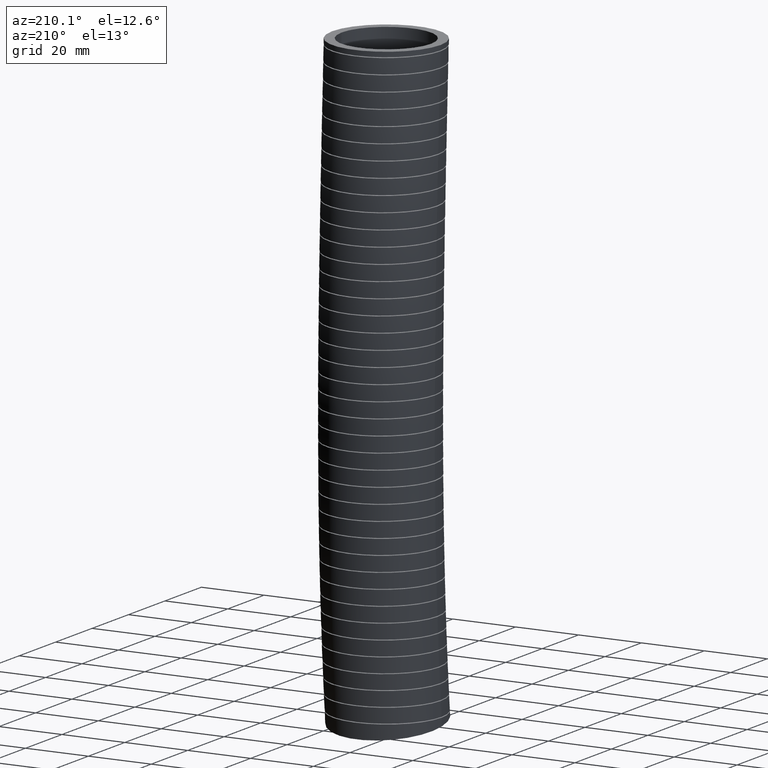
[diagram: clean part render]
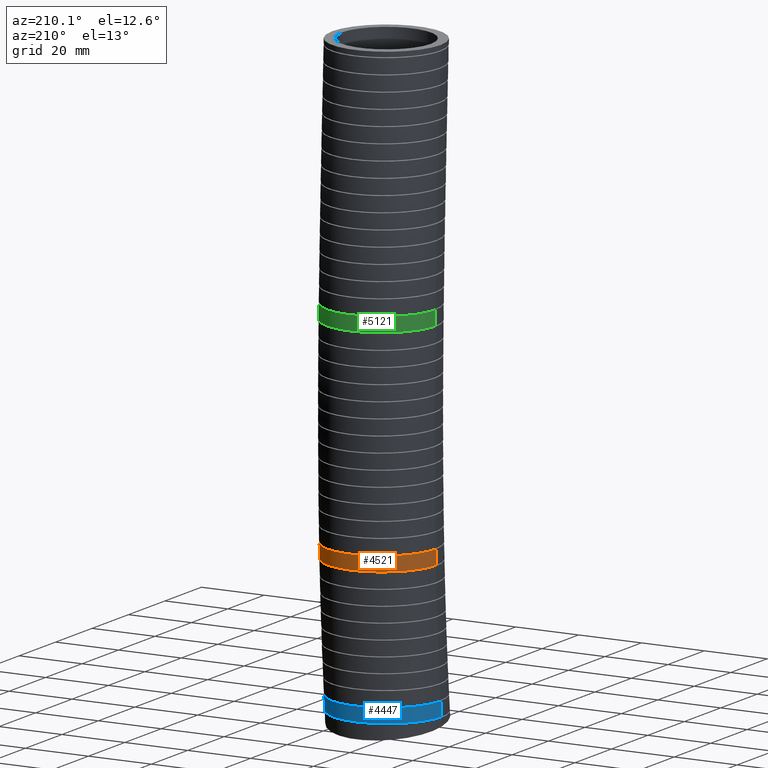
[diagram: same view with three faces highlighted in distinct colors, each labeled with its STEP entity id]
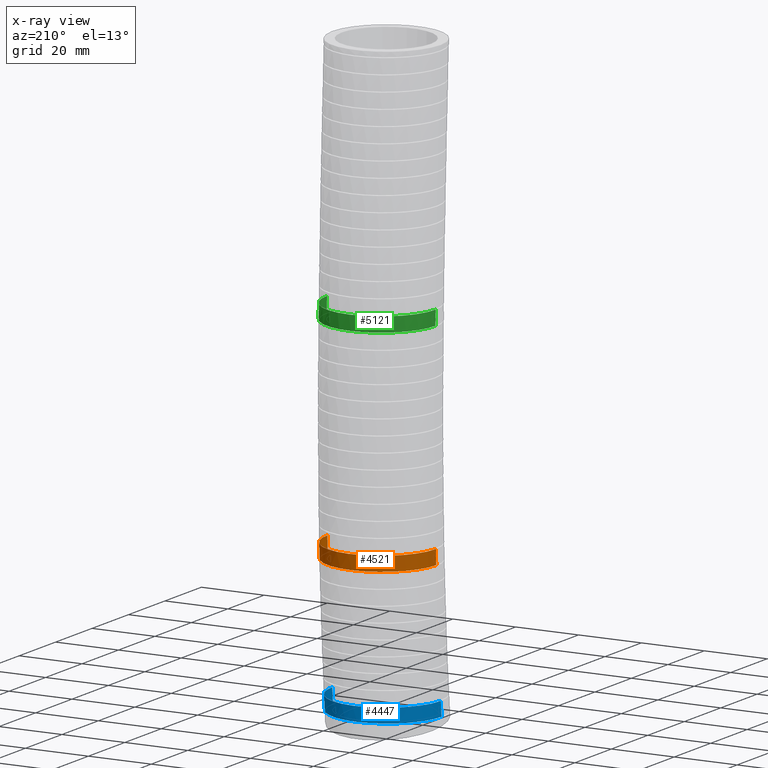
[diagram: x-ray of the same camera — body ghosted, the three highlighted faces saturated]
A machine part, auxiliary view with three faces highlighted in distinct colors.
The next image is the same camera in x-ray (body ghosted, the three faces saturated) — at least one of them is partly hidden behind the body in this view.
Their STEP definitions:

[orange] entity #4521 — the highlighted face is a freeform B-spline surface patch.
#1745 = CARTESIAN_POINT ( 'NONE',  ( -0.6799999999999998300, 0.1010036210245705600, -5.577596401920009100 ) ) ;
#1746 = CARTESIAN_POINT ( 'NONE',  ( 0.6799999999999998300, 0.1010036210244666700, -5.577596401921498500 ) ) ;
#1800 = CARTESIAN_POINT ( 'NONE',  ( -0.6799999999999998300, 0.09427101431092645100, -5.757463217313018700 ) ) ;
#1801 = CARTESIAN_POINT ( 'NONE',  ( -0.6799999999999998300, 0.09667256569161859800, -5.697514275034561300 ) ) ;
#1803 = CARTESIAN_POINT ( 'NONE',  ( -0.6799999999999998300, 0.09891510830933428200, -5.637558599627966200 ) ) ;
#1804 = CARTESIAN_POINT ( 'NONE',  ( -0.6799999999999998300, 0.1010036210245705600, -5.577596401920009100 ) ) ;
#1805 = CARTESIAN_POINT ( 'NONE',  ( -0.6799999999999998300, 0.09427101431092645100, -5.757463217313018700 ) ) ;
#1807 = B_SPLINE_CURVE_WITH_KNOTS ( 'NONE', 3,
 ( #1804, #1803, #1801, #1800 ),
 .UNSPECIFIED., .F., .F.,
 ( 4, 4 ),
 ( 0.7361141818678017500, 0.7599083267853263800 ),
 .UNSPECIFIED. ) ;
#2204 = CARTESIAN_POINT ( 'NONE',  ( 0.6799999999999998300, 0.09427101431082134100, -5.757463217314326100 ) ) ;
#2205 = CARTESIAN_POINT ( 'NONE',  ( 0.6799999999999998300, 0.09667256569156597300, -5.697514275035930000 ) ) ;
#2206 = CARTESIAN_POINT ( 'NONE',  ( 0.6799999999999998300, 0.09891510830928186600, -5.637558599629395300 ) ) ;
#2207 = CARTESIAN_POINT ( 'NONE',  ( 0.6799999999999998300, 0.1010036210244666700, -5.577596401921498500 ) ) ;
#2212 = B_SPLINE_CURVE_WITH_KNOTS ( 'NONE', 3,
 ( #2207, #2206, #2205, #2204 ),
 .UNSPECIFIED., .F., .F.,
 ( 4, 4 ),
 ( 0.7361141818679987100, 0.7599083267854995800 ),
 .UNSPECIFIED. ) ;
#2325 = CARTESIAN_POINT ( 'NONE',  ( 0.6799999999999998300, 0.09427101431082134100, -5.757463217314326100 ) ) ;
#4521 = ADVANCED_FACE ( 'NONE', ( #7113 ), #7148, .T. ) ;
#4523 = EDGE_LOOP ( 'NONE', ( #4529, #4530, #4577, #4574 ) ) ;
#4525 = EDGE_CURVE ( 'NONE', #6253, #6261, #7243, .T. ) ;
#4529 = ORIENTED_EDGE ( 'NONE', *, *, #6479, .F. ) ;
#4530 = ORIENTED_EDGE ( 'NONE', *, *, #4525, .T. ) ;
#4574 = ORIENTED_EDGE ( 'NONE', *, *, #4575, .T. ) ;
#4575 = EDGE_CURVE ( 'NONE', #7854, #6484, #7665, .T. ) ;
#4577 = ORIENTED_EDGE ( 'NONE', *, *, #7505, .T. ) ;
#6253 = VERTEX_POINT ( 'NONE', #1745 ) ;
#6261 = VERTEX_POINT ( 'NONE', #1746 ) ;
#6479 = EDGE_CURVE ( 'NONE', #6253, #6484, #1807, .T. ) ;
#6484 = VERTEX_POINT ( 'NONE', #1805 ) ;
#7113 = FACE_OUTER_BOUND ( 'NONE', #4523, .T. ) ;
#7114 = CARTESIAN_POINT ( 'NONE',  ( -0.6799999999999998300, 1.360000000000000100, 0.0000000000000000000 ) ) ;
#7115 = CARTESIAN_POINT ( 'NONE',  ( -0.6799999999999998300, -0.02999999999999994300, -7.570000000000000300 ) ) ;
#7117 = CARTESIAN_POINT ( 'NONE',  ( -0.6799999999999998300, -0.01268304244353365300, -7.380027536167250300 ) ) ;
#7118 = CARTESIAN_POINT ( 'NONE',  ( -0.6799999999999998300, 0.08815119140610096200, -6.273844317744462300 ) ) ;
#7119 = CARTESIAN_POINT ( 'NONE',  ( -0.6799999999999998300, 0.1669887239008315800, -3.753425867331408000 ) ) ;
#7120 = CARTESIAN_POINT ( 'NONE',  ( -0.6799999999999999400, 0.06299611430032946200, -1.415971326882179200 ) ) ;
#7121 = CARTESIAN_POINT ( 'NONE',  ( -0.6799999999999999400, 8.327598234202001900E-017, 0.0000000000000000000 ) ) ;
#7122 = CARTESIAN_POINT ( 'NONE',  ( -0.6800000000000000500, -1.377559051196987500, -7.386466342222807800 ) ) ;
#7123 = CARTESIAN_POINT ( 'NONE',  ( -0.6800000000000000500, -1.360997193634168900, -7.204345745797499300 ) ) ;
#7124 = CARTESIAN_POINT ( 'NONE',  ( -0.6800000000000000500, -1.264559801960247100, -6.143882858543539900 ) ) ;
#7125 = CARTESIAN_POINT ( 'NONE',  ( -0.6799999999999998300, -1.194865599480906100, -3.721164621865159700 ) ) ;
#7126 = CARTESIAN_POINT ( 'NONE',  ( -0.6800000000000000500, -1.297703424955836600, -1.403800845789877400 ) ) ;
#7127 = CARTESIAN_POINT ( 'NONE',  ( -0.6800000000000000500, -1.360000000000000100, 0.0000000000000000000 ) ) ;
#7128 = CARTESIAN_POINT ( 'NONE',  ( 0.6799999999999998300, -1.377559051196987500, -7.386466342222807800 ) ) ;
#7129 = CARTESIAN_POINT ( 'NONE',  ( 0.6799999999999998300, -1.360997193634168900, -7.204345745797499300 ) ) ;
#7131 = CARTESIAN_POINT ( 'NONE',  ( 0.6800000000000000500, -1.264559801960247100, -6.143882858543539900 ) ) ;
#7132 = CARTESIAN_POINT ( 'NONE',  ( 0.6799999999999998300, -1.194865599480906100, -3.721164621865159700 ) ) ;
#7134 = CARTESIAN_POINT ( 'NONE',  ( 0.6800000000000000500, -1.297703424955836600, -1.403800845789877400 ) ) ;
#7135 = CARTESIAN_POINT ( 'NONE',  ( 0.6800000000000000500, -1.360000000000000100, 0.0000000000000000000 ) ) ;
#7137 = CARTESIAN_POINT ( 'NONE',  ( 0.6799999999999998300, -0.03000000000000002700, -7.570000000000000300 ) ) ;
#7139 = CARTESIAN_POINT ( 'NONE',  ( 0.6799999999999998300, -0.01268304244353372900, -7.380027536167250300 ) ) ;
#7140 = CARTESIAN_POINT ( 'NONE',  ( 0.6799999999999998300, 0.08815119140610085100, -6.273844317744462300 ) ) ;
#7141 = CARTESIAN_POINT ( 'NONE',  ( 0.6799999999999998300, 0.1669887239008314700, -3.753425867331408000 ) ) ;
#7142 = CARTESIAN_POINT ( 'NONE',  ( 0.6799999999999999400, 0.06299611430032937800, -1.415971326882179200 ) ) ;
#7143 = CARTESIAN_POINT ( 'NONE',  ( 0.6799999999999999400, 0.0000000000000000000, 0.0000000000000000000 ) ) ;
#7148 =( BOUNDED_SURFACE ( )  B_SPLINE_SURFACE ( 3, 3, ( 
 ( #7143, #7142, #7141, #7140, #7139, #7137 ),
 ( #7135, #7134, #7132, #7131, #7129, #7128 ),
 ( #7127, #7126, #7125, #7124, #7123, #7122 ),
 ( #7121, #7120, #7119, #7118, #7117, #7115 ),
 ( #7114, #7182, #7181, #7180, #7179, #7178 ),
 ( #7177, #7176, #7175, #7173, #7172, #7171 ),
 ( #7170, #7169, #7168, #7167, #7166, #7165 ) ),
 .UNSPECIFIED., .F., .F., .F. ) 
 B_SPLINE_SURFACE_WITH_KNOTS ( ( 4, 3, 4 ),
 ( 4, 1, 1, 4 ),
 ( 0.0000000000000000000, 0.5000000000000000000, 1.000000000000000000 ),
 ( 0.0000000000000000000, 0.5599999999999998300, 0.9244357691435686200, 1.000000000000000000 ),
 .UNSPECIFIED. ) 
 GEOMETRIC_REPRESENTATION_ITEM ( )  RATIONAL_B_SPLINE_SURFACE ( (
 ( 1.000000000000000000, 1.000000000000000000, 0.9999999999999998900, 1.000000000000000000, 1.000000000000000000, 1.000000000000000000),
 ( 0.3333333333333333100, 0.3333333333333333100, 0.3333333333333333100, 0.3333333333333333100, 0.3333333333333333100, 0.3333333333333333100),
 ( 0.3333333333333333100, 0.3333333333333333100, 0.3333333333333333100, 0.3333333333333333100, 0.3333333333333333100, 0.3333333333333333100),
 ( 1.000000000000000000, 1.000000000000000000, 0.9999999999999998900, 1.000000000000000000, 1.000000000000000000, 1.000000000000000000),
 ( 0.3333333333333333100, 0.3333333333333333100, 0.3333333333333333100, 0.3333333333333333100, 0.3333333333333333100, 0.3333333333333333100),
 ( 0.3333333333333333100, 0.3333333333333333100, 0.3333333333333333100, 0.3333333333333333100, 0.3333333333333333100, 0.3333333333333333100),
 ( 1.000000000000000000, 1.000000000000000000, 0.9999999999999998900, 1.000000000000000000, 1.000000000000000000, 1.000000000000000000) ) ) 
 REPRESENTATION_ITEM ( '' )  SURFACE ( )  );
#7165 = CARTESIAN_POINT ( 'NONE',  ( 0.6799999999999998300, -0.03000000000000002700, -7.570000000000000300 ) ) ;
#7166 = CARTESIAN_POINT ( 'NONE',  ( 0.6799999999999998300, -0.01268304244353372900, -7.380027536167250300 ) ) ;
#7167 = CARTESIAN_POINT ( 'NONE',  ( 0.6799999999999998300, 0.08815119140610085100, -6.273844317744462300 ) ) ;
#7168 = CARTESIAN_POINT ( 'NONE',  ( 0.6799999999999998300, 0.1669887239008314700, -3.753425867331408000 ) ) ;
#7169 = CARTESIAN_POINT ( 'NONE',  ( 0.6799999999999999400, 0.06299611430032937800, -1.415971326882179200 ) ) ;
#7170 = CARTESIAN_POINT ( 'NONE',  ( 0.6799999999999999400, 0.0000000000000000000, 0.0000000000000000000 ) ) ;
#7171 = CARTESIAN_POINT ( 'NONE',  ( 0.6799999999999998300, 1.317559051196987700, -7.753533657777190100 ) ) ;
#7172 = CARTESIAN_POINT ( 'NONE',  ( 0.6799999999999998300, 1.335631108747101300, -7.555709326537000300 ) ) ;
#7173 = CARTESIAN_POINT ( 'NONE',  ( 0.6800000000000000500, 1.440862184772448300, -6.403805776945382000 ) ) ;
#7175 = CARTESIAN_POINT ( 'NONE',  ( 0.6799999999999998300, 1.528843047282568500, -3.785687112797655500 ) ) ;
#7176 = CARTESIAN_POINT ( 'NONE',  ( 0.6800000000000000500, 1.423695653556495700, -1.428141807974481600 ) ) ;
#7177 = CARTESIAN_POINT ( 'NONE',  ( 0.6800000000000000500, 1.360000000000000100, 0.0000000000000000000 ) ) ;
#7178 = CARTESIAN_POINT ( 'NONE',  ( -0.6799999999999997200, 1.317559051196987700, -7.753533657777190100 ) ) ;
#7179 = CARTESIAN_POINT ( 'NONE',  ( -0.6799999999999998300, 1.335631108747101300, -7.555709326537000300 ) ) ;
#7180 = CARTESIAN_POINT ( 'NONE',  ( -0.6799999999999998300, 1.440862184772448300, -6.403805776945382000 ) ) ;
#7181 = CARTESIAN_POINT ( 'NONE',  ( -0.6799999999999993800, 1.528843047282568500, -3.785687112797655500 ) ) ;
#7182 = CARTESIAN_POINT ( 'NONE',  ( -0.6799999999999997200, 1.423695653556495700, -1.428141807974481600 ) ) ;
#7234 = CARTESIAN_POINT ( 'NONE',  ( -0.5893945634010570000, 0.4405343868232399200, -5.577596401920008200 ) ) ;
#7235 = CARTESIAN_POINT ( 'NONE',  ( -0.6103399055496702100, 0.4013393593024285900, -5.577596401920009100 ) ) ;
#7236 = CARTESIAN_POINT ( 'NONE',  ( -0.6292737660797830300, 0.3612919176479699700, -5.577596401920000200 ) ) ;
#7237 = CARTESIAN_POINT ( 'NONE',  ( -0.6442319945808139300, 0.3195597054738088500, -5.577596401920009100 ) ) ;
#7238 = CARTESIAN_POINT ( 'NONE',  ( -0.6571684632440117900, 0.2769707235212124900, -5.577596401920009900 ) ) ;
#7239 = CARTESIAN_POINT ( 'NONE',  ( -0.6626456696212970100, 0.2551237143383119400, -5.577596401920008200 ) ) ;
#7240 = CARTESIAN_POINT ( 'NONE',  ( -0.6756944570223667500, 0.1894290233844849500, -5.577596401920006400 ) ) ;
#7241 = CARTESIAN_POINT ( 'NONE',  ( -0.6799999999999999400, 0.1453532017143135700, -5.577596401920011700 ) ) ;
#7242 = CARTESIAN_POINT ( 'NONE',  ( -0.6799999999999998300, 0.1010036210245705600, -5.577596401920009100 ) ) ;
#7243 = B_SPLINE_CURVE_WITH_KNOTS ( 'NONE', 3,
 ( #7242, #7241, #7240, #7239, #7238, #7237, #7236, #7235, #7234, #7297, #7296, #7295, #7294, #7293, #7292, #7291, #7290, #7289, #7288, #7287, #7286, #7285, #7284, #7283, #7282, #7281, #7280, #7279, #7277, #7276, #7275, #7274, #7273, #7272, #7271, #7270, #7269, #7268, #7267, #7266, #7265, #7264, #7263, #7262, #7261, #7260, #7259, #7258, #7257, #7256, #7255 ),
 .UNSPECIFIED., .F., .F.,
 ( 4, 2, 2, 1, 2, 2, 2, 2, 2, 2, 2, 2, 2, 2, 2, 2, 2, 2, 2, 2, 2, 2, 2, 2, 2, 4 ),
 ( 0.05397338793592559900, 0.05734601762359876900, 0.05903233246743534700, 0.06071864731127193200, 0.06240496215510851800, 0.06409127699894509600, 0.06746390668661826600, 0.06915022153045485800, 0.07083653637429143700, 0.07420916606196460700, 0.07589548090580118500, 0.07758179574963777700, 0.08095442543731093400, 0.08264074028114751200, 0.08432705512498409100, 0.08601336996882066900, 0.08769968481265724700, 0.09107231450033040400, 0.09275862934416698200, 0.09444494418800356000, 0.09781757387567673000, 0.09950388871951330900, 0.1011902035633499000, 0.1028765184071864800, 0.1045628332510230700, 0.1079354629386962400 ),
 .UNSPECIFIED. ) ;
#7255 = CARTESIAN_POINT ( 'NONE',  ( 0.6799999999999998300, 0.1010036210244666700, -5.577596401921498500 ) ) ;
#7256 = CARTESIAN_POINT ( 'NONE',  ( 0.6800000000000001600, 0.1459013486381138800, -5.577596401921500300 ) ) ;
#7257 = CARTESIAN_POINT ( 'NONE',  ( 0.6755878343498119600, 0.1903327163773582400, -5.577596401920009100 ) ) ;
#7258 = CARTESIAN_POINT ( 'NONE',  ( 0.6623775834478935500, 0.2562831526838749700, -5.577596401920008200 ) ) ;
#7259 = CARTESIAN_POINT ( 'NONE',  ( 0.6568929292845298000, 0.2779883467113671300, -5.577596401920008200 ) ) ;
#7260 = CARTESIAN_POINT ( 'NONE',  ( 0.6439221060768272100, 0.3204642732460913900, -5.577596401920008200 ) ) ;
#7261 = CARTESIAN_POINT ( 'NONE',  ( 0.6364235315129290700, 0.3412982295426644200, -5.577596401920008200 ) ) ;
#7262 = CARTESIAN_POINT ( 'NONE',  ( 0.6194206652643672300, 0.3821663461205858100, -5.577596401920008200 ) ) ;
#7263 = CARTESIAN_POINT ( 'NONE',  ( 0.6099164139798637400, 0.4022005225118258100, -5.577596401920009100 ) ) ;
#7264 = CARTESIAN_POINT ( 'NONE',  ( 0.5888646656095770600, 0.4414541144124898300, -5.577596401920009100 ) ) ;
#7265 = CARTESIAN_POINT ( 'NONE',  ( 0.5772470988591609200, 0.4607658772998141600, -5.577596401920006400 ) ) ;
#7266 = CARTESIAN_POINT ( 'NONE',  ( 0.5399581658567608200, 0.5163331758754948800, -5.577596401920006400 ) ) ;
#7267 = CARTESIAN_POINT ( 'NONE',  ( 0.5117919760290311500, 0.5504944486742340300, -5.577596401920009100 ) ) ;
#7268 = CARTESIAN_POINT ( 'NONE',  ( 0.4646668060272106700, 0.5974846226286245600, -5.577596401920009100 ) ) ;
#7269 = CARTESIAN_POINT ( 'NONE',  ( 0.4481400240912365400, 0.6124343823395549400, -5.577596401920014400 ) ) ;
#7270 = CARTESIAN_POINT ( 'NONE',  ( 0.4133913484377174700, 0.6408557770478251500, -5.577596401920015300 ) ) ;
#7271 = CARTESIAN_POINT ( 'NONE',  ( 0.3954533039687830900, 0.6540945692449843300, -5.577596401920009100 ) ) ;
#7272 = CARTESIAN_POINT ( 'NONE',  ( 0.3400447484377868700, 0.6909680894844658600, -5.577596401920009100 ) ) ;
#7273 = CARTESIAN_POINT ( 'NONE',  ( 0.3009780546878710300, 0.7118000725184296900, -5.577596401920003700 ) ) ;
#7274 = CARTESIAN_POINT ( 'NONE',  ( 0.2391375483652293800, 0.7373361645762081000, -5.577596401920004600 ) ) ;
#7275 = CARTESIAN_POINT ( 'NONE',  ( 0.2179064386031603900, 0.7449000958552105500, -5.577596401920011700 ) ) ;
#7276 = CARTESIAN_POINT ( 'NONE',  ( 0.1752546289410186500, 0.7577678985250463400, -5.577596401920010800 ) ) ;
#7277 = CARTESIAN_POINT ( 'NONE',  ( 0.1537336357951646600, 0.7631210113181609000, -5.577596401920008200 ) ) ;
#7279 = CARTESIAN_POINT ( 'NONE',  ( 0.1103089687792256100, 0.7717071871086375000, -5.577596401920006400 ) ) ;
#7280 = CARTESIAN_POINT ( 'NONE',  ( 0.08840528566134826800, 0.7749401988732534900, -5.577596401920008200 ) ) ;
#7281 = CARTESIAN_POINT ( 'NONE',  ( 0.04421162113152411100, 0.7792661312831995500, -5.577596401920008200 ) ) ;
#7282 = CARTESIAN_POINT ( 'NONE',  ( 0.02185299712182004300, 0.7803588076583861700, -5.577596401920008200 ) ) ;
#7283 = CARTESIAN_POINT ( 'NONE',  ( -0.04537286675360741000, 0.7803039302105974100, -5.577596401920008200 ) ) ;
#7284 = CARTESIAN_POINT ( 'NONE',  ( -0.08948877934202961700, 0.7758845362660424800, -5.577596401920008200 ) ) ;
#7285 = CARTESIAN_POINT ( 'NONE',  ( -0.1546471167758986200, 0.7629091028528387500, -5.577596401920009100 ) ) ;
#7286 = CARTESIAN_POINT ( 'NONE',  ( -0.1761960689842473300, 0.7575184957621500200, -5.577596401920008200 ) ) ;
#7287 = CARTESIAN_POINT ( 'NONE',  ( -0.2189440924661716400, 0.7445507769208696800, -5.577596401920009100 ) ) ;
#7288 = CARTESIAN_POINT ( 'NONE',  ( -0.2401372408171944800, 0.7369584073944452900, -5.577596401920008200 ) ) ;
#7289 = CARTESIAN_POINT ( 'NONE',  ( -0.3017891395091678000, 0.7113925945036869700, -5.577596401920006400 ) ) ;
#7290 = CARTESIAN_POINT ( 'NONE',  ( -0.3408229166856142600, 0.6905258652041517100, -5.577596401920008200 ) ) ;
#7291 = CARTESIAN_POINT ( 'NONE',  ( -0.3962798830905270900, 0.6535054200089548400, -5.577596401920008200 ) ) ;
#7292 = CARTESIAN_POINT ( 'NONE',  ( -0.4143335470709425000, 0.6401311302602539200, -5.577596401920008200 ) ) ;
#7293 = CARTESIAN_POINT ( 'NONE',  ( -0.4489144409852764400, 0.6117526474570711400, -5.577596401920005500 ) ) ;
#7294 = CARTESIAN_POINT ( 'NONE',  ( -0.4653816040822028600, 0.5968147271346641000, -5.577596401920003700 ) ) ;
#7295 = CARTESIAN_POINT ( 'NONE',  ( -0.5123820667464388200, 0.5498175175291016800, -5.577596401920005500 ) ) ;
#7296 = CARTESIAN_POINT ( 'NONE',  ( -0.5405373754364839500, 0.5155957278864968800, -5.577596401920005500 ) ) ;
#7297 = CARTESIAN_POINT ( 'NONE',  ( -0.5778557225139971900, 0.4597937837309779000, -5.577596401920005500 ) ) ;
#7505 = EDGE_CURVE ( 'NONE', #6261, #7854, #2212, .T. ) ;
#7665 = B_SPLINE_CURVE_WITH_KNOTS ( 'NONE', 3,
 ( #7749, #7748, #7747, #7746, #7745, #7744, #7743, #7742, #7741, #7740, #7739, #7738, #7737, #7736, #7735, #7734, #7733, #7732, #7731, #7730, #7729, #7728, #7727, #7726, #7725, #7724, #7723, #7722, #7721, #7720, #7719, #7718, #7717, #7716, #7715, #7714, #7713, #7712, #7711, #7710, #7709, #7708, #7707, #7706, #7705, #7704, #7703, #7702, #7791 ),
 .UNSPECIFIED., .F., .F.,
 ( 4, 2, 2, 2, 2, 2, 2, 2, 2, 2, 2, 2, 2, 2, 2, 2, 2, 2, 1, 2, 2, 2, 2, 2, 4 ),
 ( 0.0000000000000000000, 0.001704855891234836300, 0.003409711782469672600, 0.006819423564939340800, 0.008524279456174172300, 0.01022913534740900500, 0.01363884712987866200, 0.01534370302111348800, 0.01704855891234831700, 0.02045827069481798200, 0.02386798247728764300, 0.02557283836852247300, 0.02727769425975730400, 0.03068740604222696500, 0.03239226193346179900, 0.03409711782469662700, 0.03750682960716628800, 0.03921168549840111500, 0.04091654138963595600, 0.04262139728087079000, 0.04432625317210562400, 0.04773596495457528600, 0.04944082084581012000, 0.05114567673704494700, 0.05455538851951461500 ),
 .UNSPECIFIED. ) ;
#7702 = CARTESIAN_POINT ( 'NONE',  ( -0.6800000000000001600, 0.1387930620749803200, -5.757463217313020500 ) ) ;
#7703 = CARTESIAN_POINT ( 'NONE',  ( -0.6756619874506074600, 0.1828460956935147300, -5.757463217313019600 ) ) ;
#7704 = CARTESIAN_POINT ( 'NONE',  ( -0.6626858951880382200, 0.2482262274551612600, -5.757463217313020500 ) ) ;
#7705 = CARTESIAN_POINT ( 'NONE',  ( -0.6572443061898355400, 0.2699985128619603000, -5.757463217313020500 ) ) ;
#7706 = CARTESIAN_POINT ( 'NONE',  ( -0.6442434855169473200, 0.3128399606344486900, -5.757463217313018700 ) ) ;
#7707 = CARTESIAN_POINT ( 'NONE',  ( -0.6367351649255624800, 0.3337796459860875000, -5.757463217313016000 ) ) ;
#7708 = CARTESIAN_POINT ( 'NONE',  ( -0.6112765083574814900, 0.3951985572982328300, -5.757463217313016000 ) ) ;
#7709 = CARTESIAN_POINT ( 'NONE',  ( -0.5904204164337024700, 0.4342909727011052800, -5.757463217313019600 ) ) ;
#7710 = CARTESIAN_POINT ( 'NONE',  ( -0.5531540646349197800, 0.4900745048879935300, -5.757463217313020500 ) ) ;
#7711 = CARTESIAN_POINT ( 'NONE',  ( -0.5397532666422008000, 0.5081262281802887400, -5.757463217313013400 ) ) ;
#7712 = CARTESIAN_POINT ( 'NONE',  ( -0.5115307228512149300, 0.5424863457684995200, -5.757463217313011600 ) ) ;
#7713 = CARTESIAN_POINT ( 'NONE',  ( -0.4817581325408981700, 0.5753040398158877400, -5.757463217313023100 ) ) ;
#7714 = CARTESIAN_POINT ( 'NONE',  ( -0.4489281789050676400, 0.6050794063541994300, -5.757463217313016000 ) ) ;
#7715 = CARTESIAN_POINT ( 'NONE',  ( -0.4145466132289032900, 0.6333107915297668800, -5.757463217313016000 ) ) ;
#7716 = CARTESIAN_POINT ( 'NONE',  ( -0.3964737665633829000, 0.6467216064652574500, -5.757463217313020500 ) ) ;
#7717 = CARTESIAN_POINT ( 'NONE',  ( -0.3407268921050460300, 0.6839547598469198900, -5.757463217313018700 ) ) ;
#7718 = CARTESIAN_POINT ( 'NONE',  ( -0.3016449506513069800, 0.7048106095099638800, -5.757463217313015100 ) ) ;
#7719 = CARTESIAN_POINT ( 'NONE',  ( -0.2402152841952864500, 0.7302883250303867600, -5.757463217313014200 ) ) ;
#7720 = CARTESIAN_POINT ( 'NONE',  ( -0.2192675885768340400, 0.7378062952027215600, -5.757463217313019600 ) ) ;
#7721 = CARTESIAN_POINT ( 'NONE',  ( -0.1763999723869360000, 0.7508310885571936000, -5.757463217313018700 ) ) ;
#7722 = CARTESIAN_POINT ( 'NONE',  ( -0.1546623805265146000, 0.7562734588323588600, -5.757463217313016000 ) ) ;
#7723 = CARTESIAN_POINT ( 'NONE',  ( -0.08931621811975822000, 0.7692833047789896500, -5.757463217313015100 ) ) ;
#7724 = CARTESIAN_POINT ( 'NONE',  ( -0.04526518703051342400, 0.7736612623452379100, -5.757463217313016900 ) ) ;
#7725 = CARTESIAN_POINT ( 'NONE',  ( 0.02154775482365107700, 0.7737322645600689400, -5.757463217313015100 ) ) ;
#7726 = CARTESIAN_POINT ( 'NONE',  ( 0.04405862785059903200, 0.7726477277708652100, -5.757463217313013400 ) ) ;
#7727 = CARTESIAN_POINT ( 'NONE',  ( 0.08846952633043832200, 0.7683028588125474500, -5.757463217313010700 ) ) ;
#7728 = CARTESIAN_POINT ( 'NONE',  ( 0.1104294942675985900, 0.7650547033823922300, -5.757463217313018700 ) ) ;
#7729 = CARTESIAN_POINT ( 'NONE',  ( 0.1755896078549474300, 0.7521560521673786900, -5.757463217313018700 ) ) ;
#7730 = CARTESIAN_POINT ( 'NONE',  ( 0.2180770289523627800, 0.7393823338597040900, -5.757463217313013400 ) ) ;
#7731 = CARTESIAN_POINT ( 'NONE',  ( 0.3010667302925793000, 0.7051358330631573000, -5.757463217313013400 ) ) ;
#7732 = CARTESIAN_POINT ( 'NONE',  ( 0.3402269170282307100, 0.6842118803246301000, -5.757463217313010700 ) ) ;
#7733 = CARTESIAN_POINT ( 'NONE',  ( 0.3955127993106888900, 0.6474005901879166200, -5.757463217313008900 ) ) ;
#7734 = CARTESIAN_POINT ( 'NONE',  ( 0.4133669805606282100, 0.6342169115451270500, -5.757463217313011600 ) ) ;
#7735 = CARTESIAN_POINT ( 'NONE',  ( 0.4479005325276926300, 0.6059818526139727500, -5.757463217313014200 ) ) ;
#7736 = CARTESIAN_POINT ( 'NONE',  ( 0.4646253500046743600, 0.5908697438613139700, -5.757463217313013400 ) ) ;
#7737 = CARTESIAN_POINT ( 'NONE',  ( 0.5119471068310667000, 0.5436719866132869700, -5.757463217313014200 ) ) ;
#7738 = CARTESIAN_POINT ( 'NONE',  ( 0.5400773184208912400, 0.5094868760862562000, -5.757463217313015100 ) ) ;
#7739 = CARTESIAN_POINT ( 'NONE',  ( 0.5771937596643204000, 0.4541671553000057900, -5.757463217313016900 ) ) ;
#7740 = CARTESIAN_POINT ( 'NONE',  ( 0.5887468798394915900, 0.4349856415166746800, -5.757463217313016900 ) ) ;
#7741 = CARTESIAN_POINT ( 'NONE',  ( 0.6099330062837523500, 0.3954905531150030900, -5.757463217313016000 ) ) ;
#7742 = CARTESIAN_POINT ( 'NONE',  ( 0.6194683530967395300, 0.3753748231826883300, -5.757463217313014200 ) ) ;
#7743 = CARTESIAN_POINT ( 'NONE',  ( 0.6450008458575731100, 0.3139577469867798600, -5.757463217313015100 ) ) ;
#7744 = CARTESIAN_POINT ( 'NONE',  ( 0.6579535390046364900, 0.2715966421038470400, -5.757463217313016900 ) ) ;
#7745 = CARTESIAN_POINT ( 'NONE',  ( 0.6711352074243428500, 0.2058803064324400700, -5.757463217313016000 ) ) ;
#7746 = CARTESIAN_POINT ( 'NONE',  ( 0.6744671980758050200, 0.1836139188789196500, -5.757463217313016900 ) ) ;
#7747 = CARTESIAN_POINT ( 'NONE',  ( 0.6788890006986301200, 0.1390804335186539600, -5.757463217313016000 ) ) ;
#7748 = CARTESIAN_POINT ( 'NONE',  ( 0.6799999999999996000, 0.1167220211849325400, -5.757463217314325200 ) ) ;
#7749 = CARTESIAN_POINT ( 'NONE',  ( 0.6799999999999998300, 0.09427101431082134100, -5.757463217314326100 ) ) ;
#7791 = CARTESIAN_POINT ( 'NONE',  ( -0.6799999999999998300, 0.09427101431092645100, -5.757463217313018700 ) ) ;
#7854 = VERTEX_POINT ( 'NONE', #2325 ) ;

[blue] entity #4447 — the highlighted face is a freeform B-spline surface patch.
#4233 = VERTEX_POINT ( 'NONE', #15793 ) ;
#4248 = EDGE_CURVE ( 'NONE', #4249, #4233, #16088, .T. ) ;
#4249 = VERTEX_POINT ( 'NONE', #16093 ) ;
#4442 = ORIENTED_EDGE ( 'NONE', *, *, #4450, .T. ) ;
#4443 = EDGE_LOOP ( 'NONE', ( #4446, #4444, #4442, #4448 ) ) ;
#4444 = ORIENTED_EDGE ( 'NONE', *, *, #4445, .T. ) ;
#4445 = EDGE_CURVE ( 'NONE', #4249, #4518, #18569, .T. ) ;
#4446 = ORIENTED_EDGE ( 'NONE', *, *, #4248, .F. ) ;
#4447 = ADVANCED_FACE ( 'NONE', ( #18577 ), #18688, .T. ) ;
#4448 = ORIENTED_EDGE ( 'NONE', *, *, #4449, .T. ) ;
#4449 = EDGE_CURVE ( 'NONE', #4451, #4233, #18727, .T. ) ;
#4450 = EDGE_CURVE ( 'NONE', #4518, #4451, #18771, .T. ) ;
#4451 = VERTEX_POINT ( 'NONE', #18773 ) ;
#4518 = VERTEX_POINT ( 'NONE', #7011 ) ;
#4844 = CARTESIAN_POINT ( 'NONE',  ( 0.6799999999999998300, -1.194865599480906100, -3.721164621865159700 ) ) ;
#4845 = CARTESIAN_POINT ( 'NONE',  ( 0.6800000000000000500, -1.297703424955836600, -1.403800845789877400 ) ) ;
#4854 = CARTESIAN_POINT ( 'NONE',  ( 0.6800000000000000500, -1.264559801960247100, -6.143882858543539900 ) ) ;
#4857 = CARTESIAN_POINT ( 'NONE',  ( 0.6799999999999998300, -1.360997193634168900, -7.204345745797499300 ) ) ;
#4859 = CARTESIAN_POINT ( 'NONE',  ( -0.6800000000000000500, -1.360000000000000100, 0.0000000000000000000 ) ) ;
#4860 = CARTESIAN_POINT ( 'NONE',  ( -0.6800000000000000500, -1.297703424955836600, -1.403800845789877400 ) ) ;
#4861 = CARTESIAN_POINT ( 'NONE',  ( -0.6800000000000000500, -1.264559801960247100, -6.143882858543539900 ) ) ;
#4862 = CARTESIAN_POINT ( 'NONE',  ( -0.6799999999999998300, -1.194865599480906100, -3.721164621865159700 ) ) ;
#4869 = CARTESIAN_POINT ( 'NONE',  ( 0.6799999999999998300, -1.377559051196987500, -7.386466342222807800 ) ) ;
#4874 = CARTESIAN_POINT ( 'NONE',  ( -0.6800000000000000500, -1.377559051196987500, -7.386466342222807800 ) ) ;
#4877 = CARTESIAN_POINT ( 'NONE',  ( -0.6799999999999999400, 0.06299611430032946200, -1.415971326882179200 ) ) ;
#4878 = CARTESIAN_POINT ( 'NONE',  ( -0.6799999999999999400, 8.327598234202001900E-017, 0.0000000000000000000 ) ) ;
#4879 = CARTESIAN_POINT ( 'NONE',  ( -0.6800000000000000500, -1.360997193634168900, -7.204345745797499300 ) ) ;
#4891 = CARTESIAN_POINT ( 'NONE',  ( -0.6799999999999998300, -0.01268304244353365300, -7.380027536167250300 ) ) ;
#4892 = CARTESIAN_POINT ( 'NONE',  ( -0.6799999999999998300, 0.1669887239008315800, -3.753425867331408000 ) ) ;
#4893 = CARTESIAN_POINT ( 'NONE',  ( -0.6799999999999998300, 0.08815119140610096200, -6.273844317744462300 ) ) ;
#4895 = CARTESIAN_POINT ( 'NONE',  ( -0.6799999999999998300, -0.02999999999999994300, -7.570000000000000300 ) ) ;
#4896 = CARTESIAN_POINT ( 'NONE',  ( -0.6799999999999998300, 1.360000000000000100, 0.0000000000000000000 ) ) ;
#4906 = CARTESIAN_POINT ( 'NONE',  ( -0.6799999999999993800, 1.528843047282568500, -3.785687112797655500 ) ) ;
#4907 = CARTESIAN_POINT ( 'NONE',  ( -0.6799999999999997200, 1.423695653556495700, -1.428141807974481600 ) ) ;
#7011 = CARTESIAN_POINT ( 'NONE',  ( 0.6799999999999998300, -0.004190869116520649700, -7.284155360798807900 ) ) ;
#15793 = CARTESIAN_POINT ( 'NONE',  ( -0.6799999999999998300, -0.02029504270988753700, -7.463392953530790100 ) ) ;
#16072 = CARTESIAN_POINT ( 'NONE',  ( -0.6799999999999998300, -0.02029504270988753700, -7.463392953530790100 ) ) ;
#16074 = CARTESIAN_POINT ( 'NONE',  ( -0.6799999999999998300, -0.01487066986868112700, -7.403649473909860400 ) ) ;
#16076 = CARTESIAN_POINT ( 'NONE',  ( -0.6799999999999998300, -0.009482387055894464500, -7.343904466078901000 ) ) ;
#16078 = CARTESIAN_POINT ( 'NONE',  ( -0.6800000000000001600, -0.004190869116516860200, -7.284155360798792800 ) ) ;
#16088 = B_SPLINE_CURVE_WITH_KNOTS ( 'NONE', 3,
 ( #16078, #16076, #16074, #16072 ),
 .UNSPECIFIED., .F., .F.,
 ( 4, 4 ),
 ( 0.9621018008353031700, 0.9858652521673515500 ),
 .UNSPECIFIED. ) ;
#16093 = CARTESIAN_POINT ( 'NONE',  ( -0.6800000000000001600, -0.004190869116516860200, -7.284155360798792800 ) ) ;
#17693 = CARTESIAN_POINT ( 'NONE',  ( 0.6799999999999998300, -0.03000000000000002700, -7.570000000000000300 ) ) ;
#17694 = CARTESIAN_POINT ( 'NONE',  ( 0.6799999999999998300, -0.01268304244353372900, -7.380027536167250300 ) ) ;
#18194 = CARTESIAN_POINT ( 'NONE',  ( 0.6800000000000000500, -1.360000000000000100, 0.0000000000000000000 ) ) ;
#18520 = CARTESIAN_POINT ( 'NONE',  ( -0.08968816709163482400, 0.6732094173129668000, -7.284155360798781200 ) ) ;
#18522 = CARTESIAN_POINT ( 'NONE',  ( -0.1549648155086737200, 0.6601344790373804300, -7.284155360798778600 ) ) ;
#18525 = CARTESIAN_POINT ( 'NONE',  ( -0.1765551477060503500, 0.6547022136528978200, -7.284155360798783900 ) ) ;
#18527 = CARTESIAN_POINT ( 'NONE',  ( -0.2193895911126940200, 0.6416316692534750300, -7.284155360798785700 ) ) ;
#18529 = CARTESIAN_POINT ( 'NONE',  ( -0.2405930113947872800, 0.6339898405555350900, -7.284155360798788300 ) ) ;
#18531 = CARTESIAN_POINT ( 'NONE',  ( -0.3022793242048482700, 0.6082618884862232000, -7.284155360798787400 ) ) ;
#18533 = CARTESIAN_POINT ( 'NONE',  ( -0.3413343255679715000, 0.5872658881908442400, -7.284155360798787400 ) ) ;
#18535 = CARTESIAN_POINT ( 'NONE',  ( -0.3968181466397547300, 0.5500153691532911900, -7.284155360798783000 ) ) ;
#18537 = CARTESIAN_POINT ( 'NONE',  ( -0.4148859267565266900, 0.5365518475817120400, -7.284155360798783000 ) ) ;
#18539 = CARTESIAN_POINT ( 'NONE',  ( -0.4494300377760164800, 0.5080394924905945500, -7.284155360798785700 ) ) ;
#18541 = CARTESIAN_POINT ( 'NONE',  ( -0.4658782872414670200, 0.4930330554714367200, -7.284155360798788300 ) ) ;
#18543 = CARTESIAN_POINT ( 'NONE',  ( -0.5128205418743052600, 0.4458257370318607400, -7.284155360798787400 ) ) ;
#18545 = CARTESIAN_POINT ( 'NONE',  ( -0.5409350781130312100, 0.4114578174861151000, -7.284155360798785700 ) ) ;
#18547 = CARTESIAN_POINT ( 'NONE',  ( -0.5781898083892497200, 0.3554278435506115800, -7.284155360798786600 ) ) ;
#18549 = CARTESIAN_POINT ( 'NONE',  ( -0.5896907278120256900, 0.3361185055266820400, -7.284155360798776800 ) ) ;
#18551 = CARTESIAN_POINT ( 'NONE',  ( -0.6105755905717360500, 0.2968106774995013500, -7.284155360798775900 ) ) ;
#18553 = CARTESIAN_POINT ( 'NONE',  ( -0.6294527333263173500, 0.2566524030279485600, -7.284155360798796300 ) ) ;
#18555 = CARTESIAN_POINT ( 'NONE',  ( -0.6443627201225866600, 0.2148136882208923900, -7.284155360798779500 ) ) ;
#18557 = CARTESIAN_POINT ( 'NONE',  ( -0.6572558781583649500, 0.1721206686084417200, -7.284155360798782100 ) ) ;
#18559 = CARTESIAN_POINT ( 'NONE',  ( -0.6627133376381737500, 0.1502239025300101900, -7.284155360798783900 ) ) ;
#18561 = CARTESIAN_POINT ( 'NONE',  ( -0.6757117092614546300, 0.08439984254310425900, -7.284155360798783000 ) ) ;
#18563 = CARTESIAN_POINT ( 'NONE',  ( -0.6799999999999999400, 0.04024015926301358800, -7.284155360798791000 ) ) ;
#18565 = CARTESIAN_POINT ( 'NONE',  ( -0.6800000000000001600, -0.004190869116516860200, -7.284155360798792800 ) ) ;
#18569 = B_SPLINE_CURVE_WITH_KNOTS ( 'NONE', 3,
 ( #18565, #18563, #18561, #18559, #18557, #18555, #18553, #18551, #18549, #18547, #18545, #18543, #18541, #18539, #18537, #18535, #18533, #18531, #18529, #18527, #18525, #18522, #18520, #18667, #18666, #18665, #18664, #18662, #18660, #18658, #18656, #18654, #18652, #18650, #18649, #18646, #18643, #18641, #18639, #18637, #18635, #18634, #18632, #18631, #18630, #18628, #18627, #18625, #18624, #18622, #18621 ),
 .UNSPECIFIED., .F., .F.,
 ( 4, 2, 2, 1, 2, 2, 2, 2, 2, 2, 2, 2, 2, 2, 2, 2, 2, 2, 2, 2, 2, 2, 2, 2, 2, 4 ),
 ( 0.05407785092446906100, 0.05745672968602855100, 0.05914616906680829300, 0.06083560844758803500, 0.06252504782836777700, 0.06421448720914751900, 0.06759336597070700300, 0.06928280535148674500, 0.07097224473226648700, 0.07435112349382595700, 0.07604056287460569900, 0.07773000225538544100, 0.08110888101694491100, 0.08279832039772465300, 0.08448775977850439500, 0.08617719915928412400, 0.08786663854006386600, 0.09124551730162335000, 0.09293495668240309100, 0.09462439606318282000, 0.09800327482474230400, 0.09969271420552204600, 0.1013821535863017900, 0.1030715929670815200, 0.1047610323478612700, 0.1081399111094207400 ),
 .UNSPECIFIED. ) ;
#18577 = FACE_OUTER_BOUND ( 'NONE', #4443, .T. ) ;
#18621 = CARTESIAN_POINT ( 'NONE',  ( 0.6799999999999998300, -0.004190869116520649700, -7.284155360798807900 ) ) ;
#18622 = CARTESIAN_POINT ( 'NONE',  ( 0.6799999999999999400, 0.04078913392587514600, -7.284155360798809700 ) ) ;
#18624 = CARTESIAN_POINT ( 'NONE',  ( 0.6756054943323598300, 0.08530556948520932900, -7.284155360798787400 ) ) ;
#18625 = CARTESIAN_POINT ( 'NONE',  ( 0.6624460768715615400, 0.1513865641267122000, -7.284155360798786600 ) ) ;
#18627 = CARTESIAN_POINT ( 'NONE',  ( 0.6569798299579179300, 0.1731463341509013900, -7.284155360798783000 ) ) ;
#18628 = CARTESIAN_POINT ( 'NONE',  ( 0.6440511344697121800, 0.2157286474564474600, -7.284155360798783900 ) ) ;
#18630 = CARTESIAN_POINT ( 'NONE',  ( 0.6365757924624668700, 0.2366176646744583000, -7.284155360798781200 ) ) ;
#18631 = CARTESIAN_POINT ( 'NONE',  ( 0.6196226578472634500, 0.2775991917690752200, -7.284155360798786600 ) ) ;
#18632 = CARTESIAN_POINT ( 'NONE',  ( 0.6101449099039533100, 0.2976917194117726400, -7.284155360798785700 ) ) ;
#18634 = CARTESIAN_POINT ( 'NONE',  ( 0.5891486229978332200, 0.3370650168297204500, -7.284155360798783900 ) ) ;
#18635 = CARTESIAN_POINT ( 'NONE',  ( 0.5775595027962889800, 0.3564402135340509200, -7.284155360798782100 ) ) ;
#18637 = CARTESIAN_POINT ( 'NONE',  ( 0.5403397466715819100, 0.4122194113911641400, -7.284155360798783000 ) ) ;
#18639 = CARTESIAN_POINT ( 'NONE',  ( 0.5122128213438622600, 0.4465281005412913800, -7.284155360798790100 ) ) ;
#18641 = CARTESIAN_POINT ( 'NONE',  ( 0.4651276196067022900, 0.4937408055181682400, -7.284155360798787400 ) ) ;
#18643 = CARTESIAN_POINT ( 'NONE',  ( 0.4486110041865913300, 0.5087649963783289500, -7.284155360798781200 ) ) ;
#18646 = CARTESIAN_POINT ( 'NONE',  ( 0.4138745811904933100, 0.5373344399898067900, -7.284155360798782100 ) ) ;
#18649 = CARTESIAN_POINT ( 'NONE',  ( 0.3959364678904255800, 0.5506471809154980200, -7.284155360798783900 ) ) ;
#18650 = CARTESIAN_POINT ( 'NONE',  ( 0.3405143867838916800, 0.5877337725528109000, -7.284155360798787400 ) ) ;
#18652 = CARTESIAN_POINT ( 'NONE',  ( 0.3014182628741600100, 0.6086987764943184700, -7.284155360798792800 ) ) ;
#18654 = CARTESIAN_POINT ( 'NONE',  ( 0.2394949863076990800, 0.6344074641630875800, -7.284155360798793700 ) ) ;
#18656 = CARTESIAN_POINT ( 'NONE',  ( 0.2182373447438504300, 0.6420213657680893200, -7.284155360798785700 ) ) ;
#18658 = CARTESIAN_POINT ( 'NONE',  ( 0.1755313982375930300, 0.6549745101370594300, -7.284155360798783900 ) ) ;
#18660 = CARTESIAN_POINT ( 'NONE',  ( 0.1539784478527159400, 0.6603645081960770600, -7.284155360798783000 ) ) ;
#18662 = CARTESIAN_POINT ( 'NONE',  ( 0.1104798671054478400, 0.6690108808371746400, -7.284155360798783000 ) ) ;
#18664 = CARTESIAN_POINT ( 'NONE',  ( 0.08853422931863894100, 0.6722672150787298900, -7.284155360798787400 ) ) ;
#18665 = CARTESIAN_POINT ( 'NONE',  ( 0.04424611226677178900, 0.6766236486043532000, -7.284155360798785700 ) ) ;
#18666 = CARTESIAN_POINT ( 'NONE',  ( 0.02181790041656706700, 0.6777231593010832900, -7.284155360798782100 ) ) ;
#18667 = CARTESIAN_POINT ( 'NONE',  ( -0.04550109683785984900, 0.6776614395424919200, -7.284155360798782100 ) ) ;
#18668 = CARTESIAN_POINT ( 'NONE',  ( 0.6799999999999998300, 0.08815119140610085100, -6.273844317744462300 ) ) ;
#18669 = CARTESIAN_POINT ( 'NONE',  ( 0.6799999999999998300, 0.1669887239008314700, -3.753425867331408000 ) ) ;
#18671 = CARTESIAN_POINT ( 'NONE',  ( 0.6799999999999999400, 0.06299611430032937800, -1.415971326882179200 ) ) ;
#18672 = CARTESIAN_POINT ( 'NONE',  ( 0.6799999999999999400, 0.0000000000000000000, 0.0000000000000000000 ) ) ;
#18688 =( BOUNDED_SURFACE ( )  B_SPLINE_SURFACE ( 3, 3, ( 
 ( #18672, #18671, #18669, #18668, #17694, #17693 ),
 ( #18194, #4845, #4844, #4854, #4857, #4869 ),
 ( #4859, #4860, #4862, #4861, #4879, #4874 ),
 ( #4878, #4877, #4892, #4893, #4891, #4895 ),
 ( #4896, #4907, #4906, #18769, #18768, #18767 ),
 ( #18765, #18764, #18763, #18762, #18760, #18758 ),
 ( #18755, #18753, #18752, #18751, #18750, #18748 ) ),
 .UNSPECIFIED., .F., .F., .F. ) 
 B_SPLINE_SURFACE_WITH_KNOTS ( ( 4, 3, 4 ),
 ( 4, 1, 1, 4 ),
 ( 0.0000000000000000000, 0.5000000000000000000, 1.000000000000000000 ),
 ( 0.0000000000000000000, 0.5599999999999998300, 0.9244357691435686200, 1.000000000000000000 ),
 .UNSPECIFIED. ) 
 GEOMETRIC_REPRESENTATION_ITEM ( )  RATIONAL_B_SPLINE_SURFACE ( (
 ( 1.000000000000000000, 1.000000000000000000, 0.9999999999999998900, 1.000000000000000000, 1.000000000000000000, 1.000000000000000000),
 ( 0.3333333333333333100, 0.3333333333333333100, 0.3333333333333333100, 0.3333333333333333100, 0.3333333333333333100, 0.3333333333333333100),
 ( 0.3333333333333333100, 0.3333333333333333100, 0.3333333333333333100, 0.3333333333333333100, 0.3333333333333333100, 0.3333333333333333100),
 ( 1.000000000000000000, 1.000000000000000000, 0.9999999999999998900, 1.000000000000000000, 1.000000000000000000, 1.000000000000000000),
 ( 0.3333333333333333100, 0.3333333333333333100, 0.3333333333333333100, 0.3333333333333333100, 0.3333333333333333100, 0.3333333333333333100),
 ( 0.3333333333333333100, 0.3333333333333333100, 0.3333333333333333100, 0.3333333333333333100, 0.3333333333333333100, 0.3333333333333333100),
 ( 1.000000000000000000, 1.000000000000000000, 0.9999999999999998900, 1.000000000000000000, 1.000000000000000000, 1.000000000000000000) ) ) 
 REPRESENTATION_ITEM ( '' )  SURFACE ( )  );
#18716 = CARTESIAN_POINT ( 'NONE',  ( 0.6196819266302875400, 0.2614433449604915400, -7.463392953530796300 ) ) ;
#18717 = CARTESIAN_POINT ( 'NONE',  ( 0.6451308620072362400, 0.1998627579496477800, -7.463392953530793700 ) ) ;
#18718 = CARTESIAN_POINT ( 'NONE',  ( 0.6580381870321634400, 0.1573968961806894400, -7.463392953530783900 ) ) ;
#18720 = CARTESIAN_POINT ( 'NONE',  ( 0.6711711661564684400, 0.09153116601227512300, -7.463392953530784800 ) ) ;
#18721 = CARTESIAN_POINT ( 'NONE',  ( 0.6744895218997902800, 0.06922118983251518400, -7.463392953530790100 ) ) ;
#18723 = CARTESIAN_POINT ( 'NONE',  ( 0.6788935421809194600, 0.02460035472576319700, -7.463392953530792800 ) ) ;
#18724 = CARTESIAN_POINT ( 'NONE',  ( 0.6799999999999997200, 0.002198719068020942200, -7.463392953530789200 ) ) ;
#18725 = CARTESIAN_POINT ( 'NONE',  ( 0.6799999999999998300, -0.02029504270988769000, -7.463392953530790100 ) ) ;
#18727 = B_SPLINE_CURVE_WITH_KNOTS ( 'NONE', 3,
 ( #18725, #18724, #18723, #18721, #18720, #18718, #18717, #18716, #18840, #18838, #18836, #18835, #18834, #18832, #18831, #18830, #18828, #18827, #18826, #18824, #18822, #18819, #18817, #18815, #18813, #18811, #18808, #18805, #18803, #18801, #18799, #18797, #18796, #18795, #18793, #18792, #18791, #18789, #18788, #18786, #18785, #18783, #18782, #18781, #18779, #18778, #18777, #18776, #18774 ),
 .UNSPECIFIED., .F., .F.,
 ( 4, 2, 2, 2, 2, 2, 2, 2, 2, 2, 2, 2, 2, 2, 2, 2, 2, 2, 1, 2, 2, 2, 2, 2, 4 ),
 ( 0.0000000000000000000, 0.001708114042184679700, 0.003416228084369359500, 0.006832456168738721600, 0.008540570210923404500, 0.01024868425310808900, 0.01366491233747746700, 0.01537302637966215400, 0.01708114042184683700, 0.02049736850621621300, 0.02391359659058558600, 0.02562171063277027300, 0.02732982467495495900, 0.03074605275932433200, 0.03245416680150901800, 0.03416228084369370100, 0.03757850892806308100, 0.03928662297024777100, 0.04099473701243246100, 0.04270285105461715800, 0.04441096509680184800, 0.04782719318117122100, 0.04953530722335590400, 0.05124342126554059400, 0.05465964934990996700 ),
 .UNSPECIFIED. ) ;
#18748 = CARTESIAN_POINT ( 'NONE',  ( 0.6799999999999998300, -0.03000000000000002700, -7.570000000000000300 ) ) ;
#18750 = CARTESIAN_POINT ( 'NONE',  ( 0.6799999999999998300, -0.01268304244353372900, -7.380027536167250300 ) ) ;
#18751 = CARTESIAN_POINT ( 'NONE',  ( 0.6799999999999998300, 0.08815119140610085100, -6.273844317744462300 ) ) ;
#18752 = CARTESIAN_POINT ( 'NONE',  ( 0.6799999999999998300, 0.1669887239008314700, -3.753425867331408000 ) ) ;
#18753 = CARTESIAN_POINT ( 'NONE',  ( 0.6799999999999999400, 0.06299611430032937800, -1.415971326882179200 ) ) ;
#18755 = CARTESIAN_POINT ( 'NONE',  ( 0.6799999999999999400, 0.0000000000000000000, 0.0000000000000000000 ) ) ;
#18758 = CARTESIAN_POINT ( 'NONE',  ( 0.6799999999999998300, 1.317559051196987700, -7.753533657777190100 ) ) ;
#18760 = CARTESIAN_POINT ( 'NONE',  ( 0.6799999999999998300, 1.335631108747101300, -7.555709326537000300 ) ) ;
#18762 = CARTESIAN_POINT ( 'NONE',  ( 0.6800000000000000500, 1.440862184772448300, -6.403805776945382000 ) ) ;
#18763 = CARTESIAN_POINT ( 'NONE',  ( 0.6799999999999998300, 1.528843047282568500, -3.785687112797655500 ) ) ;
#18764 = CARTESIAN_POINT ( 'NONE',  ( 0.6800000000000000500, 1.423695653556495700, -1.428141807974481600 ) ) ;
#18765 = CARTESIAN_POINT ( 'NONE',  ( 0.6800000000000000500, 1.360000000000000100, 0.0000000000000000000 ) ) ;
#18767 = CARTESIAN_POINT ( 'NONE',  ( -0.6799999999999997200, 1.317559051196987700, -7.753533657777190100 ) ) ;
#18768 = CARTESIAN_POINT ( 'NONE',  ( -0.6799999999999998300, 1.335631108747101300, -7.555709326537000300 ) ) ;
#18769 = CARTESIAN_POINT ( 'NONE',  ( -0.6799999999999998300, 1.440862184772448300, -6.403805776945382000 ) ) ;
#18771 = B_SPLINE_CURVE_WITH_KNOTS ( 'NONE', 3,
 ( #18905, #18904, #18903, #18902 ),
 .UNSPECIFIED., .F., .F.,
 ( 4, 4 ),
 ( 0.9621018008353053900, 0.9858652521673515500 ),
 .UNSPECIFIED. ) ;
#18773 = CARTESIAN_POINT ( 'NONE',  ( 0.6799999999999998300, -0.02029504270988769000, -7.463392953530790100 ) ) ;
#18774 = CARTESIAN_POINT ( 'NONE',  ( -0.6799999999999998300, -0.02029504270988753700, -7.463392953530790100 ) ) ;
#18776 = CARTESIAN_POINT ( 'NONE',  ( -0.6800000000000001600, 0.02431469062458950800, -7.463392953530791000 ) ) ;
#18777 = CARTESIAN_POINT ( 'NONE',  ( -0.6756790417897986500, 0.06845726072216908000, -7.463392953530796300 ) ) ;
#18778 = CARTESIAN_POINT ( 'NONE',  ( -0.6627527137806655800, 0.1339743222751949000, -7.463392953530793700 ) ) ;
#18779 = CARTESIAN_POINT ( 'NONE',  ( -0.6573335800421491500, 0.1557879913692659400, -7.463392953530789200 ) ) ;
#18781 = CARTESIAN_POINT ( 'NONE',  ( -0.6443760955187424200, 0.1987419112541926600, -7.463392953530791000 ) ) ;
#18782 = CARTESIAN_POINT ( 'NONE',  ( -0.6368914574455842900, 0.2197401052902239500, -7.463392953530791000 ) ) ;
#18783 = CARTESIAN_POINT ( 'NONE',  ( -0.6115078248985937900, 0.2813402594320381100, -7.463392953530791000 ) ) ;
#18785 = CARTESIAN_POINT ( 'NONE',  ( -0.5907070056546154200, 0.3205610677817838900, -7.463392953530788400 ) ) ;
#18786 = CARTESIAN_POINT ( 'NONE',  ( -0.5535253614206958600, 0.3765458433773792900, -7.463392953530785700 ) ) ;
#18788 = CARTESIAN_POINT ( 'NONE',  ( -0.5401465171029273800, 0.3946750864406086100, -7.463392953530790100 ) ) ;
#18789 = CARTESIAN_POINT ( 'NONE',  ( -0.5119631096009470400, 0.4291889117527547500, -7.463392953530791000 ) ) ;
#18791 = CARTESIAN_POINT ( 'NONE',  ( -0.4822241582688991900, 0.4621620680477944700, -7.463392953530790100 ) ) ;
#18792 = CARTESIAN_POINT ( 'NONE',  ( -0.4494139755116104400, 0.4920933614201941100, -7.463392953530788400 ) ) ;
#18793 = CARTESIAN_POINT ( 'NONE',  ( -0.4150436312939995200, 0.5204794123011008400, -7.463392953530789200 ) ) ;
#18795 = CARTESIAN_POINT ( 'NONE',  ( -0.3969720834530776600, 0.5339673160785266500, -7.463392953530785700 ) ) ;
#18796 = CARTESIAN_POINT ( 'NONE',  ( -0.3412153335538626300, 0.5714225950702669400, -7.463392953530788400 ) ) ;
#18797 = CARTESIAN_POINT ( 'NONE',  ( -0.3021057848222468100, 0.5924164230075172900, -7.463392953530796300 ) ) ;
#18799 = CARTESIAN_POINT ( 'NONE',  ( -0.2405972728382359800, 0.6180726531275228000, -7.463392953530796300 ) ) ;
#18801 = CARTESIAN_POINT ( 'NONE',  ( -0.2196170182471650900, 0.6256453656782867700, -7.463392953530791000 ) ) ;
#18803 = CARTESIAN_POINT ( 'NONE',  ( -0.1766700344887047200, 0.6387671567064451300, -7.463392953530792800 ) ) ;
#18805 = CARTESIAN_POINT ( 'NONE',  ( -0.1549115057937888500, 0.6442446651985650500, -7.463392953530794600 ) ) ;
#18808 = CARTESIAN_POINT ( 'NONE',  ( -0.08946176822703673400, 0.6573474592975018200, -7.463392953530796300 ) ) ;
#18811 = CARTESIAN_POINT ( 'NONE',  ( -0.04532324396355487400, 0.6617599783209363600, -7.463392953530790100 ) ) ;
#18813 = CARTESIAN_POINT ( 'NONE',  ( 0.02165056150777699300, 0.6618265673069513300, -7.463392953530790100 ) ) ;
#18815 = CARTESIAN_POINT ( 'NONE',  ( 0.04421157354900569900, 0.6607304448511209800, -7.463392953530795500 ) ) ;
#18817 = CARTESIAN_POINT ( 'NONE',  ( 0.08868547837097749700, 0.6563503285396227200, -7.463392953530795500 ) ) ;
#18819 = CARTESIAN_POINT ( 'NONE',  ( 0.1106785447562332900, 0.6530770836199113500, -7.463392953530793700 ) ) ;
#18822 = CARTESIAN_POINT ( 'NONE',  ( 0.1759421408111015400, 0.6400790945724302800, -7.463392953530794600 ) ) ;
#18824 = CARTESIAN_POINT ( 'NONE',  ( 0.2185466288155330200, 0.6271898063884079300, -7.463392953530789200 ) ) ;
#18826 = CARTESIAN_POINT ( 'NONE',  ( 0.3016068232406238200, 0.5927031266147366800, -7.463392953530788400 ) ) ;
#18827 = CARTESIAN_POINT ( 'NONE',  ( 0.3407549153304499400, 0.5716584072112486100, -7.463392953530790100 ) ) ;
#18828 = CARTESIAN_POINT ( 'NONE',  ( 0.3960500689129902700, 0.5346222933183228900, -7.463392953530788400 ) ) ;
#18830 = CARTESIAN_POINT ( 'NONE',  ( 0.4139063717981107900, 0.5213586323489137800, -7.463392953530785700 ) ) ;
#18831 = CARTESIAN_POINT ( 'NONE',  ( 0.4484418222423754400, 0.4929527190916182000, -7.463392953530788400 ) ) ;
#18832 = CARTESIAN_POINT ( 'NONE',  ( 0.4651494398712463500, 0.4777637974364534700, -7.463392953530792800 ) ) ;
#18834 = CARTESIAN_POINT ( 'NONE',  ( 0.5123988909273798900, 0.4303560216805605900, -7.463392953530792800 ) ) ;
#18835 = CARTESIAN_POINT ( 'NONE',  ( 0.5404800612121670700, 0.3960275897990259100, -7.463392953530792800 ) ) ;
#18836 = CARTESIAN_POINT ( 'NONE',  ( 0.5775230496909722300, 0.3404890479259760100, -7.463392953530792800 ) ) ;
#18838 = CARTESIAN_POINT ( 'NONE',  ( 0.5890570486280259900, 0.3212230441904877500, -7.463392953530792800 ) ) ;
#18840 = CARTESIAN_POINT ( 'NONE',  ( 0.6101770650301012700, 0.2816146591401922400, -7.463392953530790100 ) ) ;
#18902 = CARTESIAN_POINT ( 'NONE',  ( 0.6799999999999998300, -0.02029504270988769000, -7.463392953530790100 ) ) ;
#18903 = CARTESIAN_POINT ( 'NONE',  ( 0.6799999999999998300, -0.01487066986868170900, -7.403649473909866600 ) ) ;
#18904 = CARTESIAN_POINT ( 'NONE',  ( 0.6799999999999998300, -0.009482387055895552200, -7.343904466078913500 ) ) ;
#18905 = CARTESIAN_POINT ( 'NONE',  ( 0.6799999999999998300, -0.004190869116520649700, -7.284155360798807900 ) ) ;

[green] entity #5121 — the highlighted face is a freeform B-spline surface patch.
#4792 = EDGE_CURVE ( 'NONE', #4808, #4796, #9007, .T. ) ;
#4796 = VERTEX_POINT ( 'NONE', #9009 ) ;
#4800 = VERTEX_POINT ( 'NONE', #8999 ) ;
#4808 = VERTEX_POINT ( 'NONE', #9111 ) ;
#4880 = EDGE_CURVE ( 'NONE', #4800, #4883, #9508, .T. ) ;
#4883 = VERTEX_POINT ( 'NONE', #9509 ) ;
#5118 = ORIENTED_EDGE ( 'NONE', *, *, #4880, .T. ) ;
#5120 = EDGE_CURVE ( 'NONE', #4808, #4800, #12147, .T. ) ;
#5121 = ADVANCED_FACE ( 'NONE', ( #12149 ), #12208, .T. ) ;
#5128 = EDGE_LOOP ( 'NONE', ( #5130, #5129, #5118, #5379 ) ) ;
#5129 = ORIENTED_EDGE ( 'NONE', *, *, #5120, .T. ) ;
#5130 = ORIENTED_EDGE ( 'NONE', *, *, #4792, .F. ) ;
#5378 = EDGE_CURVE ( 'NONE', #4883, #4796, #14517, .T. ) ;
#5379 = ORIENTED_EDGE ( 'NONE', *, *, #5378, .T. ) ;
#8999 = CARTESIAN_POINT ( 'NONE',  ( 0.6799999999999999400, 0.1088023629607940000, -2.917977268646144000 ) ) ;
#9001 = CARTESIAN_POINT ( 'NONE',  ( -0.6799999999999998300, 0.1126723275547497300, -3.097933278352221500 ) ) ;
#9002 = CARTESIAN_POINT ( 'NONE',  ( -0.6799999999999998300, 0.1114658343364662300, -3.037951477390859400 ) ) ;
#9003 = CARTESIAN_POINT ( 'NONE',  ( -0.6799999999999998300, 0.1101741964442342600, -2.977966071030714500 ) ) ;
#9004 = CARTESIAN_POINT ( 'NONE',  ( -0.6799999999999999400, 0.1088023629695697000, -2.917977268838019900 ) ) ;
#9007 = B_SPLINE_CURVE_WITH_KNOTS ( 'NONE', 3,
 ( #9004, #9003, #9002, #9001 ),
 .UNSPECIFIED., .F., .F.,
 ( 4, 4 ),
 ( 0.3847927721789218800, 0.4085393999407829200 ),
 .UNSPECIFIED. ) ;
#9009 = CARTESIAN_POINT ( 'NONE',  ( -0.6799999999999998300, 0.1126723275547497300, -3.097933278352221500 ) ) ;
#9111 = CARTESIAN_POINT ( 'NONE',  ( -0.6799999999999999400, 0.1088023629695697000, -2.917977268838019900 ) ) ;
#9504 = CARTESIAN_POINT ( 'NONE',  ( 0.6799999999999998300, 0.1126723275470301900, -3.097933278160332800 ) ) ;
#9505 = CARTESIAN_POINT ( 'NONE',  ( 0.6799999999999998300, 0.1114658343324232400, -3.037951477198889400 ) ) ;
#9506 = CARTESIAN_POINT ( 'NONE',  ( 0.6799999999999998300, 0.1101741964400150100, -2.977966070838741400 ) ) ;
#9507 = CARTESIAN_POINT ( 'NONE',  ( 0.6799999999999999400, 0.1088023629607940000, -2.917977268646144000 ) ) ;
#9508 = B_SPLINE_CURVE_WITH_KNOTS ( 'NONE', 3,
 ( #9507, #9506, #9505, #9504 ),
 .UNSPECIFIED., .F., .F.,
 ( 4, 4 ),
 ( 0.3847927721535905900, 0.4085393999154499100 ),
 .UNSPECIFIED. ) ;
#9509 = CARTESIAN_POINT ( 'NONE',  ( 0.6799999999999998300, 0.1126723275470301900, -3.097933278160332800 ) ) ;
#12116 = CARTESIAN_POINT ( 'NONE',  ( 0.2804504901263451500, 0.7284652954501642500, -2.917977268838018100 ) ) ;
#12117 = CARTESIAN_POINT ( 'NONE',  ( 0.2190097704285332800, 0.7538774696969229300, -2.917977268838019400 ) ) ;
#12118 = CARTESIAN_POINT ( 'NONE',  ( 0.1765947084537939900, 0.7667767077427400900, -2.917977268838017700 ) ) ;
#12119 = CARTESIAN_POINT ( 'NONE',  ( 0.1107235883661548700, 0.7798770198714003500, -2.917977268838018100 ) ) ;
#12120 = CARTESIAN_POINT ( 'NONE',  ( 0.08850710690842765500, 0.7831593893997925700, -2.917977268838018100 ) ) ;
#12121 = CARTESIAN_POINT ( 'NONE',  ( 0.04426307866772856400, 0.7874980468155938800, -2.917977268838017200 ) ) ;
#12122 = CARTESIAN_POINT ( 'NONE',  ( 1.466559372243417200E-006, 0.7896541287226376300, -2.917977268838019900 ) ) ;
#12123 = CARTESIAN_POINT ( 'NONE',  ( -0.04429489376810084200, 0.7874971315347232300, -2.917977268838019400 ) ) ;
#12124 = CARTESIAN_POINT ( 'NONE',  ( -0.08860892146704239800, 0.7831471940325717100, -2.917977268838019900 ) ) ;
#12125 = CARTESIAN_POINT ( 'NONE',  ( -0.1108970071619048000, 0.7798466822973976200, -2.917977268838018600 ) ) ;
#12126 = CARTESIAN_POINT ( 'NONE',  ( -0.1766137459153222800, 0.7667645836499974400, -2.917977268838019900 ) ) ;
#12127 = CARTESIAN_POINT ( 'NONE',  ( -0.2190032567757878600, 0.7538824281127435300, -2.917977268838017700 ) ) ;
#12128 = CARTESIAN_POINT ( 'NONE',  ( -0.2804982248415466300, 0.7284444187468908100, -2.917977268838017200 ) ) ;
#12129 = CARTESIAN_POINT ( 'NONE',  ( -0.3006458562574218000, 0.7189387096210018100, -2.917977268838016300 ) ) ;
#12130 = CARTESIAN_POINT ( 'NONE',  ( -0.3402159755068717700, 0.6978050042949584000, -2.917977268838017700 ) ) ;
#12131 = CARTESIAN_POINT ( 'NONE',  ( -0.3593964232570287000, 0.6863005095390425400, -2.917977268838019900 ) ) ;
#12132 = CARTESIAN_POINT ( 'NONE',  ( -0.4147871615244365100, 0.6492914508843239400, -2.917977268838020800 ) ) ;
#12133 = CARTESIAN_POINT ( 'NONE',  ( -0.4490422647293601000, 0.6212217092635909900, -2.917977268838020300 ) ) ;
#12134 = CARTESIAN_POINT ( 'NONE',  ( -0.4963676876325931500, 0.5739590596915212800, -2.917977268838020300 ) ) ;
#12135 = CARTESIAN_POINT ( 'NONE',  ( -0.5115181617000835700, 0.5572566579584090600, -2.917977268838018100 ) ) ;
#12136 = CARTESIAN_POINT ( 'NONE',  ( -0.5398163736261860600, 0.5227832945903986300, -2.917977268838017200 ) ) ;
#12137 = CARTESIAN_POINT ( 'NONE',  ( -0.5530354820922537300, 0.5049544171138052900, -2.917977268838019400 ) ) ;
#12138 = CARTESIAN_POINT ( 'NONE',  ( -0.5899605919079785600, 0.4497279879881918600, -2.917977268838020300 ) ) ;
#12139 = CARTESIAN_POINT ( 'NONE',  ( -0.6109912303379079200, 0.4105356018680031400, -2.917977268838017200 ) ) ;
#12140 = CARTESIAN_POINT ( 'NONE',  ( -0.6453660207415241600, 0.3276289192910570300, -2.917977268838017200 ) ) ;
#12141 = CARTESIAN_POINT ( 'NONE',  ( -0.6582102257547538500, 0.2851600251920310400, -2.917977268838018600 ) ) ;
#12142 = CARTESIAN_POINT ( 'NONE',  ( -0.6712076092218957100, 0.2199908436901021900, -2.917977268838017700 ) ) ;
#12143 = CARTESIAN_POINT ( 'NONE',  ( -0.6744875387349190700, 0.1980216734356801100, -2.917977268838019400 ) ) ;
#12144 = CARTESIAN_POINT ( 'NONE',  ( -0.6788907455977548600, 0.1535790505743154000, -2.917977268838019400 ) ) ;
#12145 = CARTESIAN_POINT ( 'NONE',  ( -0.6799999999999998300, 0.1310701724450147900, -2.917977268838017700 ) ) ;
#12146 = CARTESIAN_POINT ( 'NONE',  ( -0.6799999999999999400, 0.1088023629695697000, -2.917977268838019900 ) ) ;
#12147 = B_SPLINE_CURVE_WITH_KNOTS ( 'NONE', 3,
 ( #12146, #12145, #12144, #12143, #12142, #12141, #12140, #12139, #12138, #12137, #12136, #12135, #12134, #12133, #12132, #12131, #12130, #12129, #12128, #12127, #12126, #12125, #12124, #12123, #12122, #12121, #12120, #12119, #12118, #12117, #12116, #12190, #12189, #12188, #12187, #12186, #12185, #12184, #12183, #12182, #12181, #12180, #12179, #12178, #12177, #12176, #12175, #12174, #12173, #12172, #12171 ),
 .UNSPECIFIED., .F., .F.,
 ( 4, 2, 2, 2, 2, 2, 2, 2, 2, 2, 2, 2, 1, 2, 2, 2, 2, 2, 2, 2, 2, 2, 2, 2, 2, 4 ),
 ( 0.05456804898314299200, 0.05627341237061934300, 0.05797877575809569400, 0.06138950253304839600, 0.06480022930800109800, 0.06650559269547744200, 0.06821095608295380000, 0.07162168285790650200, 0.07332704624538286000, 0.07503240963285921800, 0.07844313640781192000, 0.08014849979528829200, 0.08185386318276463600, 0.08355922657024099400, 0.08526458995771735200, 0.08867531673267006800, 0.09038068012014642500, 0.09208604350762278300, 0.09549677028257549900, 0.09720213367005185700, 0.09890749705752821500, 0.1023182238324809300, 0.1040235872199573000, 0.1057289506074336700, 0.1074343139949100200, 0.1091396773823863900 ),
 .UNSPECIFIED. ) ;
#12149 = FACE_OUTER_BOUND ( 'NONE', #5128, .T. ) ;
#12171 = CARTESIAN_POINT ( 'NONE',  ( 0.6799999999999999400, 0.1088023629607940000, -2.917977268646144000 ) ) ;
#12172 = CARTESIAN_POINT ( 'NONE',  ( 0.6799999999999998300, 0.1312600315952694200, -2.917977268646143600 ) ) ;
#12173 = CARTESIAN_POINT ( 'NONE',  ( 0.6788791094459468700, 0.1537319264686138300, -2.917977268838017700 ) ) ;
#12174 = CARTESIAN_POINT ( 'NONE',  ( 0.6744781027364285000, 0.1980813136286827300, -2.917977268838016300 ) ) ;
#12175 = CARTESIAN_POINT ( 'NONE',  ( 0.6712019127621028400, 0.2200233571158123100, -2.917977268838015900 ) ) ;
#12176 = CARTESIAN_POINT ( 'NONE',  ( 0.6625390991472150900, 0.2634509983375735200, -2.917977268838017700 ) ) ;
#12177 = CARTESIAN_POINT ( 'NONE',  ( 0.6571524265657218100, 0.2849365854872340500, -2.917977268838020800 ) ) ;
#12178 = CARTESIAN_POINT ( 'NONE',  ( 0.6442482204291497500, 0.3274468960048035900, -2.917977268838020800 ) ) ;
#12179 = CARTESIAN_POINT ( 'NONE',  ( 0.6367024319980986200, 0.3485390418915899100, -2.917977268838017700 ) ) ;
#12180 = CARTESIAN_POINT ( 'NONE',  ( 0.6109315545160157700, 0.4106495865512431700, -2.917977268838018100 ) ) ;
#12181 = CARTESIAN_POINT ( 'NONE',  ( 0.5899608298428372600, 0.4497304032409690800, -2.917977268838022100 ) ) ;
#12182 = CARTESIAN_POINT ( 'NONE',  ( 0.5530156575600231300, 0.5049826806802927300, -2.917977268838021700 ) ) ;
#12183 = CARTESIAN_POINT ( 'NONE',  ( 0.5397790534429111100, 0.5228345036016425200, -2.917977268838019900 ) ) ;
#12184 = CARTESIAN_POINT ( 'NONE',  ( 0.5114144115265788500, 0.5573772746103810000, -2.917977268838019400 ) ) ;
#12185 = CARTESIAN_POINT ( 'NONE',  ( 0.4962800835929707700, 0.5740505040935314200, -2.917977268838017200 ) ) ;
#12186 = CARTESIAN_POINT ( 'NONE',  ( 0.4490355497294739000, 0.6212204793338588200, -2.917977268838018100 ) ) ;
#12187 = CARTESIAN_POINT ( 'NONE',  ( 0.4147935853076009600, 0.6492916156152039900, -2.917977268838020800 ) ) ;
#12188 = CARTESIAN_POINT ( 'NONE',  ( 0.3593224936480692900, 0.6863476726164144900, -2.917977268838019900 ) ) ;
#12189 = CARTESIAN_POINT ( 'NONE',  ( 0.3400387137721938600, 0.6979051269005739400, -2.917977268838019400 ) ) ;
#12190 = CARTESIAN_POINT ( 'NONE',  ( 0.3005644513478873400, 0.7189767004908342900, -2.917977268838019900 ) ) ;
#12191 = CARTESIAN_POINT ( 'NONE',  ( 0.6800000000000000500, -1.264559801960247100, -6.143882858543539900 ) ) ;
#12192 = CARTESIAN_POINT ( 'NONE',  ( 0.6799999999999998300, -1.194865599480906100, -3.721164621865159700 ) ) ;
#12193 = CARTESIAN_POINT ( 'NONE',  ( 0.6800000000000000500, -1.297703424955836600, -1.403800845789877400 ) ) ;
#12194 = CARTESIAN_POINT ( 'NONE',  ( 0.6800000000000000500, -1.360000000000000100, 0.0000000000000000000 ) ) ;
#12195 = CARTESIAN_POINT ( 'NONE',  ( 0.6799999999999998300, -0.03000000000000002700, -7.570000000000000300 ) ) ;
#12196 = CARTESIAN_POINT ( 'NONE',  ( 0.6799999999999998300, -0.01268304244353372900, -7.380027536167250300 ) ) ;
#12197 = CARTESIAN_POINT ( 'NONE',  ( 0.6799999999999998300, 0.08815119140610085100, -6.273844317744462300 ) ) ;
#12198 = CARTESIAN_POINT ( 'NONE',  ( 0.6799999999999998300, 0.1669887239008314700, -3.753425867331408000 ) ) ;
#12199 = CARTESIAN_POINT ( 'NONE',  ( 0.6799999999999999400, 0.06299611430032937800, -1.415971326882179200 ) ) ;
#12200 = CARTESIAN_POINT ( 'NONE',  ( 0.6799999999999999400, 0.0000000000000000000, 0.0000000000000000000 ) ) ;
#12208 =( BOUNDED_SURFACE ( )  B_SPLINE_SURFACE ( 3, 3, ( 
 ( #12200, #12199, #12198, #12197, #12196, #12195 ),
 ( #12194, #12193, #12192, #12191, #12241, #12240 ),
 ( #12239, #12238, #12237, #12236, #12235, #12234 ),
 ( #12233, #12232, #12231, #12230, #12229, #12228 ),
 ( #12227, #12226, #12225, #12224, #12223, #12222 ),
 ( #12221, #12220, #12219, #12218, #12217, #12216 ),
 ( #12215, #12214, #12213, #12212, #12211, #12210 ) ),
 .UNSPECIFIED., .F., .F., .F. ) 
 B_SPLINE_SURFACE_WITH_KNOTS ( ( 4, 3, 4 ),
 ( 4, 1, 1, 4 ),
 ( 0.0000000000000000000, 0.5000000000000000000, 1.000000000000000000 ),
 ( 0.0000000000000000000, 0.5599999999999998300, 0.9244357691435686200, 1.000000000000000000 ),
 .UNSPECIFIED. ) 
 GEOMETRIC_REPRESENTATION_ITEM ( )  RATIONAL_B_SPLINE_SURFACE ( (
 ( 1.000000000000000000, 1.000000000000000000, 0.9999999999999998900, 1.000000000000000000, 1.000000000000000000, 1.000000000000000000),
 ( 0.3333333333333333100, 0.3333333333333333100, 0.3333333333333333100, 0.3333333333333333100, 0.3333333333333333100, 0.3333333333333333100),
 ( 0.3333333333333333100, 0.3333333333333333100, 0.3333333333333333100, 0.3333333333333333100, 0.3333333333333333100, 0.3333333333333333100),
 ( 1.000000000000000000, 1.000000000000000000, 0.9999999999999998900, 1.000000000000000000, 1.000000000000000000, 1.000000000000000000),
 ( 0.3333333333333333100, 0.3333333333333333100, 0.3333333333333333100, 0.3333333333333333100, 0.3333333333333333100, 0.3333333333333333100),
 ( 0.3333333333333333100, 0.3333333333333333100, 0.3333333333333333100, 0.3333333333333333100, 0.3333333333333333100, 0.3333333333333333100),
 ( 1.000000000000000000, 1.000000000000000000, 0.9999999999999998900, 1.000000000000000000, 1.000000000000000000, 1.000000000000000000) ) ) 
 REPRESENTATION_ITEM ( '' )  SURFACE ( )  );
#12210 = CARTESIAN_POINT ( 'NONE',  ( 0.6799999999999998300, -0.03000000000000002700, -7.570000000000000300 ) ) ;
#12211 = CARTESIAN_POINT ( 'NONE',  ( 0.6799999999999998300, -0.01268304244353372900, -7.380027536167250300 ) ) ;
#12212 = CARTESIAN_POINT ( 'NONE',  ( 0.6799999999999998300, 0.08815119140610085100, -6.273844317744462300 ) ) ;
#12213 = CARTESIAN_POINT ( 'NONE',  ( 0.6799999999999998300, 0.1669887239008314700, -3.753425867331408000 ) ) ;
#12214 = CARTESIAN_POINT ( 'NONE',  ( 0.6799999999999999400, 0.06299611430032937800, -1.415971326882179200 ) ) ;
#12215 = CARTESIAN_POINT ( 'NONE',  ( 0.6799999999999999400, 0.0000000000000000000, 0.0000000000000000000 ) ) ;
#12216 = CARTESIAN_POINT ( 'NONE',  ( 0.6799999999999998300, 1.317559051196987700, -7.753533657777190100 ) ) ;
#12217 = CARTESIAN_POINT ( 'NONE',  ( 0.6799999999999998300, 1.335631108747101300, -7.555709326537000300 ) ) ;
#12218 = CARTESIAN_POINT ( 'NONE',  ( 0.6800000000000000500, 1.440862184772448300, -6.403805776945382000 ) ) ;
#12219 = CARTESIAN_POINT ( 'NONE',  ( 0.6799999999999998300, 1.528843047282568500, -3.785687112797655500 ) ) ;
#12220 = CARTESIAN_POINT ( 'NONE',  ( 0.6800000000000000500, 1.423695653556495700, -1.428141807974481600 ) ) ;
#12221 = CARTESIAN_POINT ( 'NONE',  ( 0.6800000000000000500, 1.360000000000000100, 0.0000000000000000000 ) ) ;
#12222 = CARTESIAN_POINT ( 'NONE',  ( -0.6799999999999997200, 1.317559051196987700, -7.753533657777190100 ) ) ;
#12223 = CARTESIAN_POINT ( 'NONE',  ( -0.6799999999999998300, 1.335631108747101300, -7.555709326537000300 ) ) ;
#12224 = CARTESIAN_POINT ( 'NONE',  ( -0.6799999999999998300, 1.440862184772448300, -6.403805776945382000 ) ) ;
#12225 = CARTESIAN_POINT ( 'NONE',  ( -0.6799999999999993800, 1.528843047282568500, -3.785687112797655500 ) ) ;
#12226 = CARTESIAN_POINT ( 'NONE',  ( -0.6799999999999997200, 1.423695653556495700, -1.428141807974481600 ) ) ;
#12227 = CARTESIAN_POINT ( 'NONE',  ( -0.6799999999999998300, 1.360000000000000100, 0.0000000000000000000 ) ) ;
#12228 = CARTESIAN_POINT ( 'NONE',  ( -0.6799999999999998300, -0.02999999999999994300, -7.570000000000000300 ) ) ;
#12229 = CARTESIAN_POINT ( 'NONE',  ( -0.6799999999999998300, -0.01268304244353365300, -7.380027536167250300 ) ) ;
#12230 = CARTESIAN_POINT ( 'NONE',  ( -0.6799999999999998300, 0.08815119140610096200, -6.273844317744462300 ) ) ;
#12231 = CARTESIAN_POINT ( 'NONE',  ( -0.6799999999999998300, 0.1669887239008315800, -3.753425867331408000 ) ) ;
#12232 = CARTESIAN_POINT ( 'NONE',  ( -0.6799999999999999400, 0.06299611430032946200, -1.415971326882179200 ) ) ;
#12233 = CARTESIAN_POINT ( 'NONE',  ( -0.6799999999999999400, 8.327598234202001900E-017, 0.0000000000000000000 ) ) ;
#12234 = CARTESIAN_POINT ( 'NONE',  ( -0.6800000000000000500, -1.377559051196987500, -7.386466342222807800 ) ) ;
#12235 = CARTESIAN_POINT ( 'NONE',  ( -0.6800000000000000500, -1.360997193634168900, -7.204345745797499300 ) ) ;
#12236 = CARTESIAN_POINT ( 'NONE',  ( -0.6800000000000000500, -1.264559801960247100, -6.143882858543539900 ) ) ;
#12237 = CARTESIAN_POINT ( 'NONE',  ( -0.6799999999999998300, -1.194865599480906100, -3.721164621865159700 ) ) ;
#12238 = CARTESIAN_POINT ( 'NONE',  ( -0.6800000000000000500, -1.297703424955836600, -1.403800845789877400 ) ) ;
#12239 = CARTESIAN_POINT ( 'NONE',  ( -0.6800000000000000500, -1.360000000000000100, 0.0000000000000000000 ) ) ;
#12240 = CARTESIAN_POINT ( 'NONE',  ( 0.6799999999999998300, -1.377559051196987500, -7.386466342222807800 ) ) ;
#12241 = CARTESIAN_POINT ( 'NONE',  ( 0.6799999999999998300, -1.360997193634168900, -7.204345745797499300 ) ) ;
#14517 = B_SPLINE_CURVE_WITH_KNOTS ( 'NONE', 3,
 ( #14570, #14568, #14566, #14564, #14562, #14560, #14559, #14557, #14555, #14553, #14551, #14549, #14547, #14545, #14543, #14541, #14539, #14537, #14535, #14533, #14531, #14528, #14526, #14524, #14522, #14670, #14669, #14667, #14665, #14663, #14661, #14659, #14657, #14655, #14653, #14651, #14649, #14648, #14645, #14643, #14640, #14637, #14635, #14633, #14632, #14630, #14629, #14628, #14626 ),
 .UNSPECIFIED., .F., .F.,
 ( 4, 2, 2, 2, 2, 2, 2, 2, 2, 1, 2, 2, 2, 2, 2, 2, 2, 2, 2, 2, 2, 2, 2, 2, 4 ),
 ( 0.0000000000000000000, 0.003374327297271145900, 0.005061490945906719400, 0.006748654594542294500, 0.01012298189181344000, 0.01181014554044901300, 0.01349730918908458600, 0.01687163648635572900, 0.01855880013499130000, 0.02024596378362686700, 0.02193312743226243800, 0.02362029108089800900, 0.02699461837816914700, 0.02868178202680471400, 0.03036894567544028500, 0.03374327297271142300, 0.03543043662134699700, 0.03711760026998257200, 0.04049192756725370600, 0.04386625486452484800, 0.04555341851316041500, 0.04724058216179599600, 0.05061490945906713100, 0.05230207310770270500, 0.05398923675633827300 ),
 .UNSPECIFIED. ) ;
#14522 = CARTESIAN_POINT ( 'NONE',  ( -0.02193487162562752000, 0.7924007911824075800, -3.097933278352220200 ) ) ;
#14524 = CARTESIAN_POINT ( 'NONE',  ( 0.04458069685695462800, 0.7923776193043716700, -3.097933278352221100 ) ) ;
#14526 = CARTESIAN_POINT ( 'NONE',  ( 0.08869673704232165800, 0.7880682951052553300, -3.097933278352221100 ) ) ;
#14528 = CARTESIAN_POINT ( 'NONE',  ( 0.1545200323801506300, 0.7749889131725319300, -3.097933278352219800 ) ) ;
#14531 = CARTESIAN_POINT ( 'NONE',  ( 0.1763372952008728500, 0.7695170917954471400, -3.097933278352222000 ) ) ;
#14533 = CARTESIAN_POINT ( 'NONE',  ( 0.2189039749263054200, 0.7565935765562417100, -3.097933278352222000 ) ) ;
#14535 = CARTESIAN_POINT ( 'NONE',  ( 0.2606388056499622800, 0.7416477796867372300, -3.097933278352223800 ) ) ;
#14537 = CARTESIAN_POINT ( 'NONE',  ( 0.3007324407078628100, 0.7227121242738029400, -3.097933278352219300 ) ) ;
#14539 = CARTESIAN_POINT ( 'NONE',  ( 0.3399929578191692200, 0.7017511023392039000, -3.097933278352219300 ) ) ;
#14541 = CARTESIAN_POINT ( 'NONE',  ( 0.3593092977282471600, 0.6901854804812891400, -3.097933278352222400 ) ) ;
#14543 = CARTESIAN_POINT ( 'NONE',  ( 0.4150721919442588200, 0.6529253386668960600, -3.097933278352223300 ) ) ;
#14545 = CARTESIAN_POINT ( 'NONE',  ( 0.4493154129891530100, 0.6247922638540166500, -3.097933278352222000 ) ) ;
#14547 = CARTESIAN_POINT ( 'NONE',  ( 0.4963850024384131600, 0.5777686591136571600, -3.097933278352221100 ) ) ;
#14549 = CARTESIAN_POINT ( 'NONE',  ( 0.5113538712340628400, 0.5612843744174697000, -3.097933278352222400 ) ) ;
#14551 = CARTESIAN_POINT ( 'NONE',  ( 0.5398031777311271800, 0.5266441459499405800, -3.097933278352221500 ) ) ;
#14553 = CARTESIAN_POINT ( 'NONE',  ( 0.5531501338236370900, 0.5086375072483130300, -3.097933278352222000 ) ) ;
#14555 = CARTESIAN_POINT ( 'NONE',  ( 0.5901774974582357800, 0.4532152044056508800, -3.097933278352221500 ) ) ;
#14557 = CARTESIAN_POINT ( 'NONE',  ( 0.6110745380329241100, 0.4141678270317140600, -3.097933278352222000 ) ) ;
#14559 = CARTESIAN_POINT ( 'NONE',  ( 0.6366867928227628600, 0.3524194554567518000, -3.097933278352222000 ) ) ;
#14560 = CARTESIAN_POINT ( 'NONE',  ( 0.6442887482640263800, 0.3311910469041299300, -3.097933278352222400 ) ) ;
#14562 = CARTESIAN_POINT ( 'NONE',  ( 0.6572406557881465000, 0.2884767973191232900, -3.097933278352222400 ) ) ;
#14564 = CARTESIAN_POINT ( 'NONE',  ( 0.6626268333243965400, 0.2669340630636051800, -3.097933278352222400 ) ) ;
#14566 = CARTESIAN_POINT ( 'NONE',  ( 0.6755889654261221200, 0.2017614529520963800, -3.097933278352223300 ) ) ;
#14568 = CARTESIAN_POINT ( 'NONE',  ( 0.6799999999999998300, 0.1575925314771869400, -3.097933278160333700 ) ) ;
#14570 = CARTESIAN_POINT ( 'NONE',  ( 0.6799999999999998300, 0.1126723275470301900, -3.097933278160332800 ) ) ;
#14626 = CARTESIAN_POINT ( 'NONE',  ( -0.6799999999999998300, 0.1126723275547497300, -3.097933278352221500 ) ) ;
#14628 = CARTESIAN_POINT ( 'NONE',  ( -0.6799999999999999400, 0.1348582130250052500, -3.097933278352222000 ) ) ;
#14629 = CARTESIAN_POINT ( 'NONE',  ( -0.6789161136797194900, 0.1571129689581591800, -3.097933278352226400 ) ) ;
#14630 = CARTESIAN_POINT ( 'NONE',  ( -0.6745068944125519600, 0.2017649030175027200, -3.097933278352224200 ) ) ;
#14632 = CARTESIAN_POINT ( 'NONE',  ( -0.6712042866980662000, 0.2238835313438117500, -3.097933278352221100 ) ) ;
#14633 = CARTESIAN_POINT ( 'NONE',  ( -0.6581644910555108900, 0.2892154886188984500, -3.097933278352221500 ) ) ;
#14635 = CARTESIAN_POINT ( 'NONE',  ( -0.6453068503939367600, 0.3315996400534110300, -3.097933278352222400 ) ) ;
#14637 = CARTESIAN_POINT ( 'NONE',  ( -0.6196970700430919400, 0.3933985921863740200, -3.097933278352222000 ) ) ;
#14640 = CARTESIAN_POINT ( 'NONE',  ( -0.6100451658036391000, 0.4137816502155742800, -3.097933278352221500 ) ) ;
#14643 = CARTESIAN_POINT ( 'NONE',  ( -0.5889900735746485000, 0.4531010536688728800, -3.097933278352222000 ) ) ;
#14645 = CARTESIAN_POINT ( 'NONE',  ( -0.5775595151975592100, 0.4721276080429321900, -3.097933278352219300 ) ) ;
#14648 = CARTESIAN_POINT ( 'NONE',  ( -0.5406150901609686500, 0.5273472946739811200, -3.097933278352218900 ) ) ;
#14649 = CARTESIAN_POINT ( 'NONE',  ( -0.5124154398250438900, 0.5617578401154584800, -3.097933278352219800 ) ) ;
#14651 = CARTESIAN_POINT ( 'NONE',  ( -0.4489147965024172800, 0.6251885277864672700, -3.097933278352218900 ) ) ;
#14653 = CARTESIAN_POINT ( 'NONE',  ( -0.4145670667770455800, 0.6532794536305498400, -3.097933278352224200 ) ) ;
#14655 = CARTESIAN_POINT ( 'NONE',  ( -0.3592970523706233700, 0.6901853049169931500, -3.097933278352224200 ) ) ;
#14657 = CARTESIAN_POINT ( 'NONE',  ( -0.3402443658597141800, 0.7016090638878069700, -3.097933278352223300 ) ) ;
#14659 = CARTESIAN_POINT ( 'NONE',  ( -0.3008495729470213600, 0.7226573279056275300, -3.097933278352222000 ) ) ;
#14661 = CARTESIAN_POINT ( 'NONE',  ( -0.2804698959870226500, 0.7322821679289608400, -3.097933278352222400 ) ) ;
#14663 = CARTESIAN_POINT ( 'NONE',  ( -0.2187284609482878200, 0.7578074856705878700, -3.097933278352221500 ) ) ;
#14665 = CARTESIAN_POINT ( 'NONE',  ( -0.1763446970111905200, 0.7706409291805669200, -3.097933278352222000 ) ) ;
#14667 = CARTESIAN_POINT ( 'NONE',  ( -0.1109456620417322800, 0.7836529652281991600, -3.097933278352222000 ) ) ;
#14669 = CARTESIAN_POINT ( 'NONE',  ( -0.08874058145095215000, 0.7869519230931193400, -3.097933278352223300 ) ) ;
#14670 = CARTESIAN_POINT ( 'NONE',  ( -0.04416405522762246300, 0.7913273246911083400, -3.097933278352223800 ) ) ;